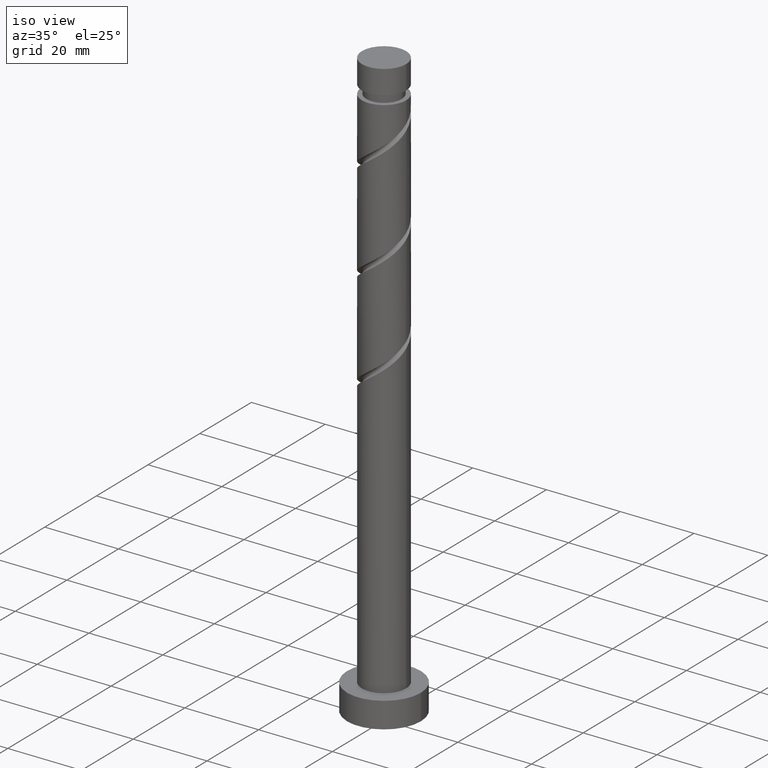
[diagram: clean part render]
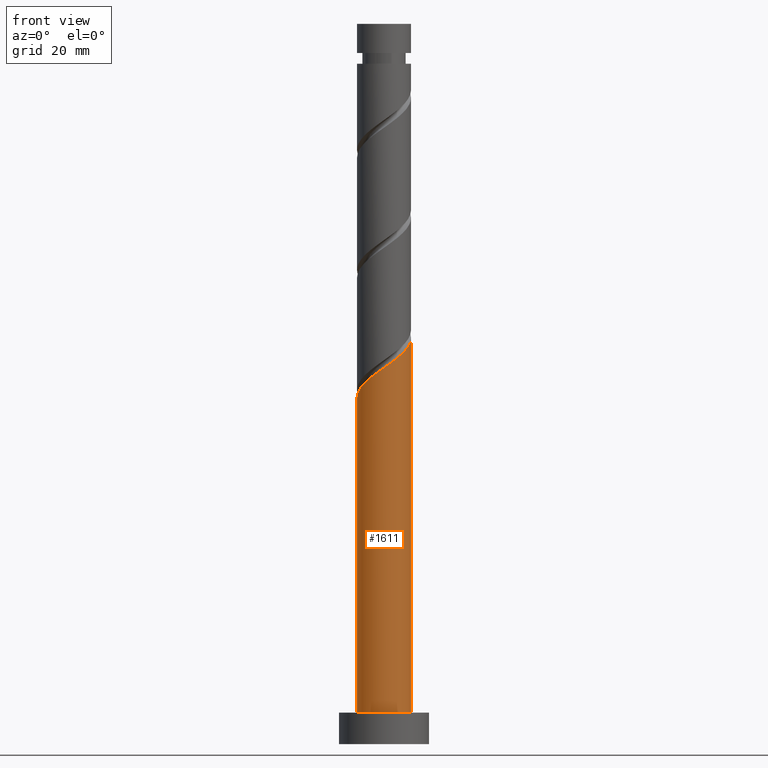
[diagram: tour spotlight — one face highlighted and labeled with its STEP entity id]
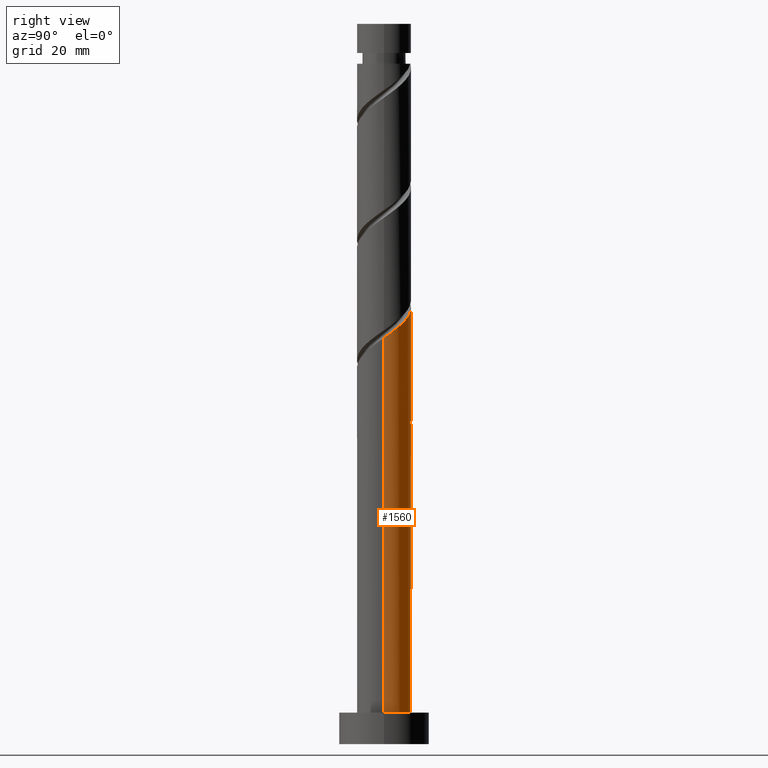
[diagram: tour spotlight — one face highlighted and labeled with its STEP entity id]
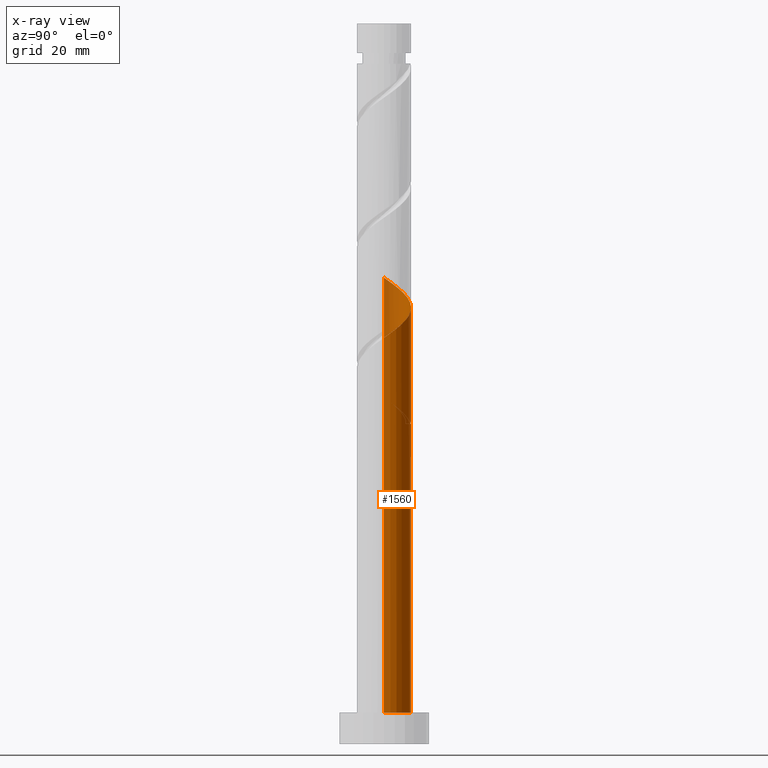
[diagram: x-ray of the same camera — body ghosted, this tour face saturated]
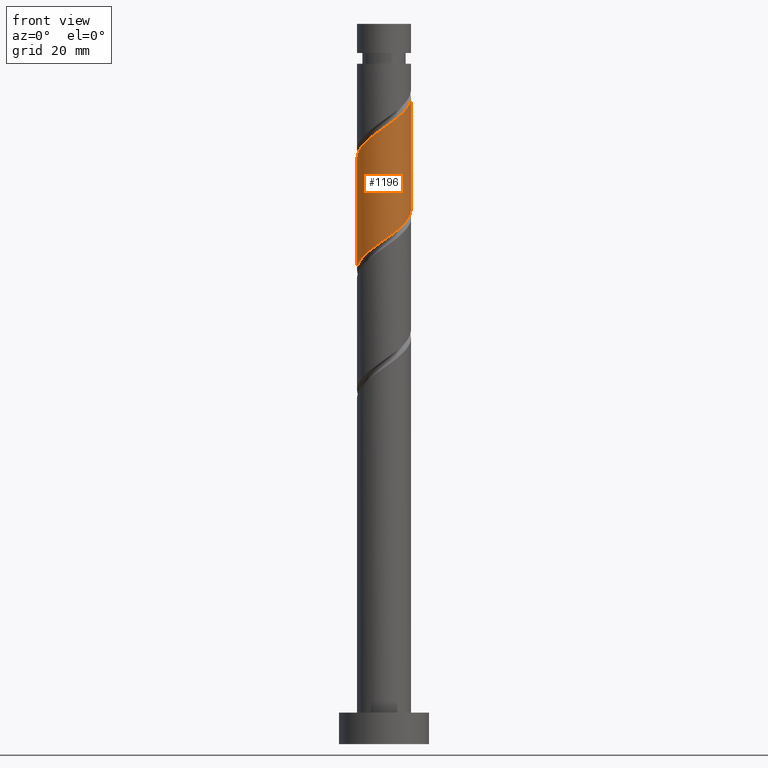
[diagram: tour spotlight — one face highlighted and labeled with its STEP entity id]
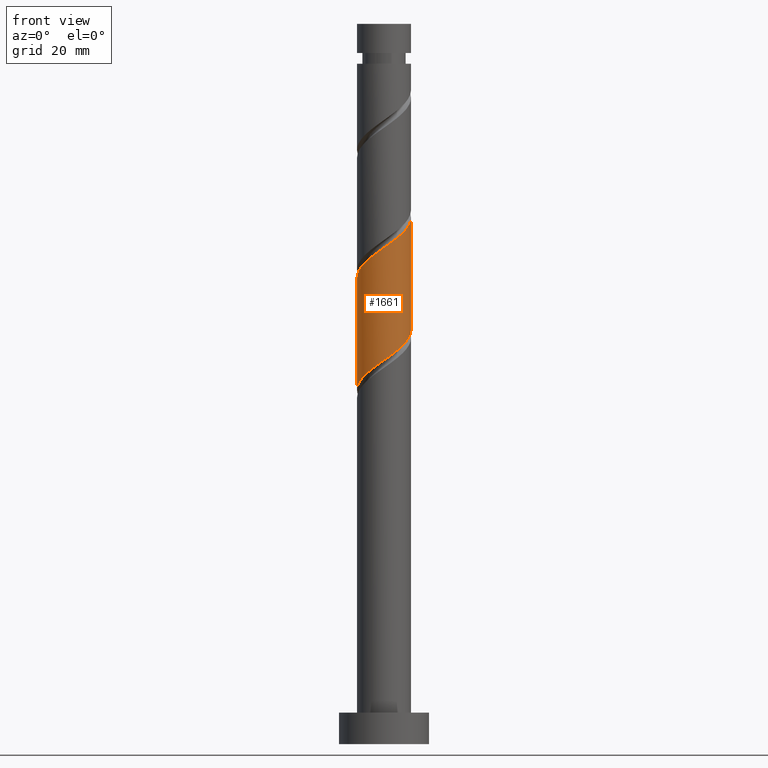
[diagram: tour spotlight — one face highlighted and labeled with its STEP entity id]
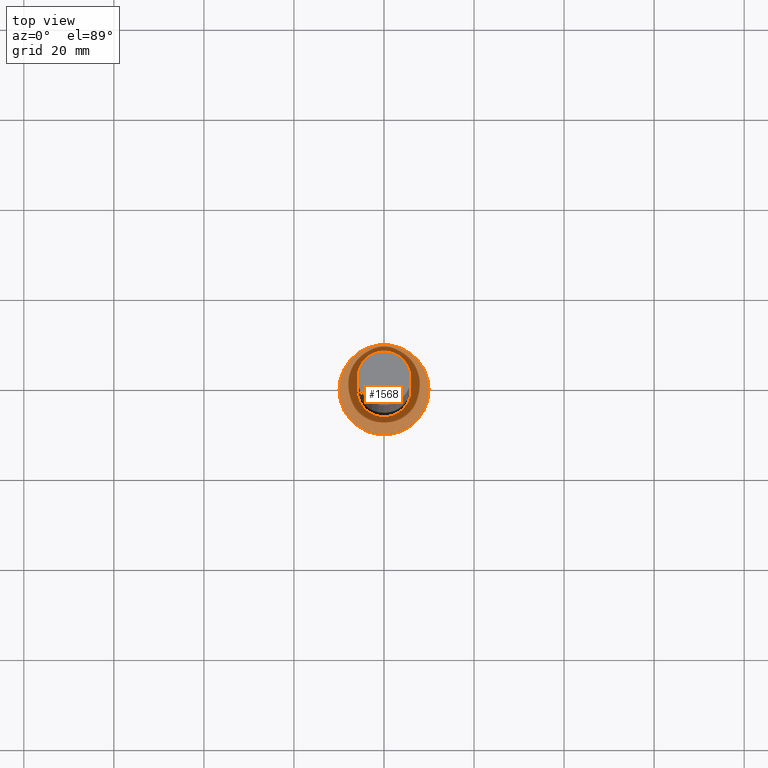
[diagram: tour spotlight — one face highlighted and labeled with its STEP entity id]
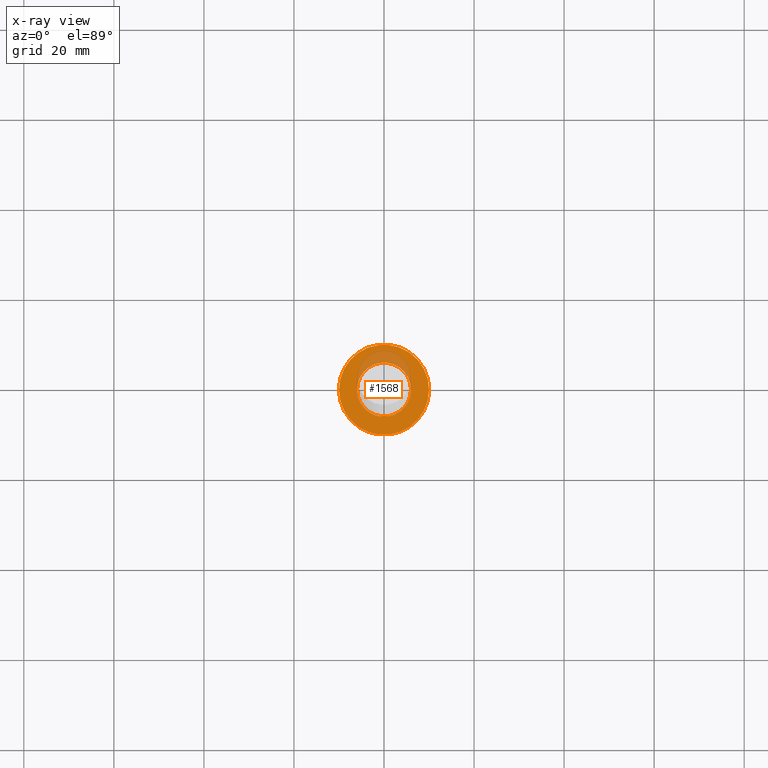
[diagram: x-ray of the same camera — body ghosted, this tour face saturated]
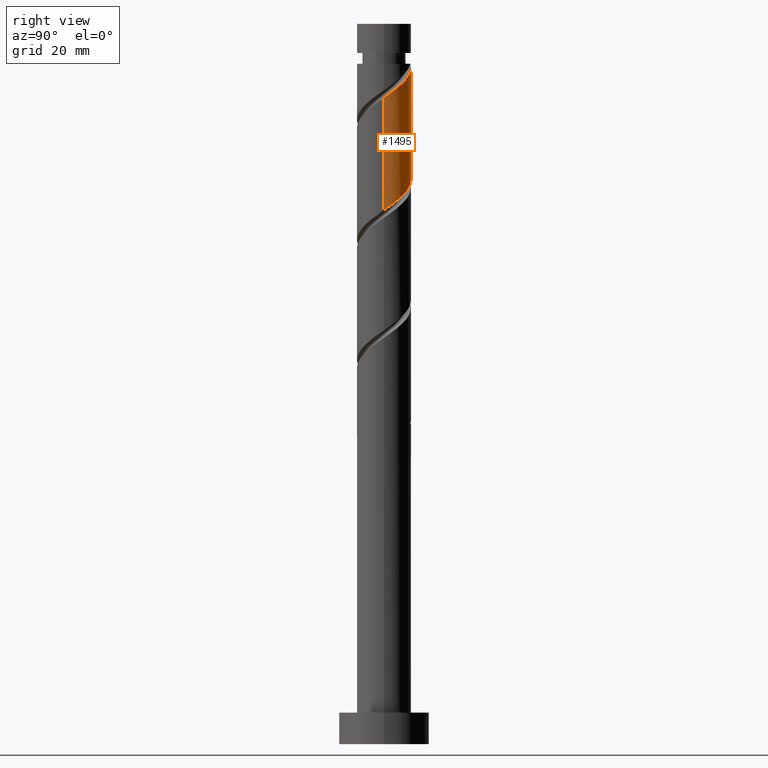
[diagram: tour spotlight — one face highlighted and labeled with its STEP entity id]
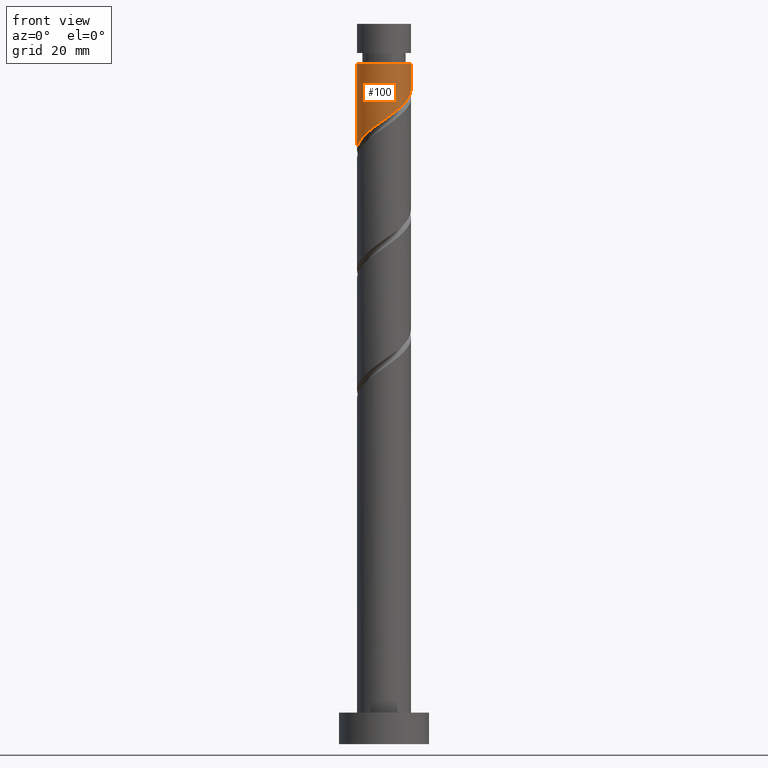
[diagram: tour spotlight — one face highlighted and labeled with its STEP entity id]
A machine part: a face-by-face anatomy tour. The part has 21 B-rep faces; the first image is the clean iso view, then the 7 largest visible faces are spotlighted one at a time (largest first), each with its STEP entity span.

Face 1 — front view, entity #1611. In plain terms, the highlighted cylindrical surface (edge-blend (fillet) strip) has radius 6 mm, axis along (-0, -0, -1).
Definition (entity closure, byte-faithful):
#3 = CYLINDRICAL_SURFACE ( 'NONE', #758, 6.000000000000000888 ) ;
#16 = DIRECTION ( 'NONE',  ( -0.000000000000000000, -0.000000000000000000, -1.000000000000000000 ) ) ;
#68 = ORIENTED_EDGE ( 'NONE', *, *, #1215, .T. ) ;
#99 = CARTESIAN_POINT ( 'NONE',  ( 5.649592463916823348, -2.196885093336046424, 88.69768516461985541 ) ) ;
#108 = CARTESIAN_POINT ( 'NONE',  ( 4.801810218481219472, -3.699569940865726547, 87.48556395249867990 ) ) ;
#162 = VERTEX_POINT ( 'NONE', #1579 ) ;
#178 = VERTEX_POINT ( 'NONE', #1011 ) ;
#247 = CARTESIAN_POINT ( 'NONE',  ( -6.000000000000000888, 0.000000000000000000, 7.000000000000000000 ) ) ;
#248 = CARTESIAN_POINT ( 'NONE',  ( 6.000000000000006217, 2.931536857885300648E-15, 90.27247310956141746 ) ) ;
#254 =( BOUNDED_CURVE ( )  B_SPLINE_CURVE ( 2, ( #256, #374, #1527, #772, #1533, #882, #502, #1265, #1031, #1259, #1292, #642, #634, #906, #1663, #269, #381, #1636, #482, #108, #1155, #99, #1519, #753, #248 ),
 .UNSPECIFIED., .F., .T. ) 
 B_SPLINE_CURVE_WITH_KNOTS ( ( 3, 2, 2, 2, 2, 2, 2, 2, 2, 2, 2, 2, 3 ),
 ( 0.05452521624175125925, 0.05681818181818176772, 0.06818181818181823228, 0.07954545454545458583, 0.09090909090909093937, 0.1022727272727272929, 0.1136363636363636465, 0.1250000000000000000, 0.1363636363636363535, 0.1477272727272727071, 0.1590909090909090606, 0.1704545454545454142, 0.1795252162417513286 ),
 .UNSPECIFIED. ) 
 CURVE ( )  GEOMETRIC_REPRESENTATION_ITEM ( )  RATIONAL_B_SPLINE_CURVE ( ( 0.9061101570135592365, 0.9072237824201413448, 0.9090909090909189416, 0.8998376744372211800, 0.9090909090909189416, 0.8998376744372211800, 0.9090909090909189416, 0.8998376744372211800, 0.9090909090909189416, 0.8998376744372211800, 0.9090909090909189416, 0.8998376744372211800, 0.9090909090909189416, 0.8998376744372211800, 0.9090909090909189416, 0.8998376744372211800, 0.9090909090909189416, 0.8998376744372211800, 0.9090909090909189416, 0.8998376744372211800, 0.9090909090909189416, 0.8998376744372211800, 0.9090909090909189416, 0.9017048011079986658, 0.9061101570135593475 ) ) 
 REPRESENTATION_ITEM ( '' )  );
#256 = CARTESIAN_POINT ( 'NONE',  ( -6.000000000000007105, -3.290500554769215214E-15, 76.93913977622807465 ) ) ;
#267 = EDGE_CURVE ( 'NONE', #479, #178, #254, .T. ) ;
#269 = CARTESIAN_POINT ( 'NONE',  ( 2.039401293218388034, -5.708330884495666169, 85.06132152825625781 ) ) ;
#296 = CARTESIAN_POINT ( 'NONE',  ( 6.000000000000000888, 7.347880794884120722E-16, 160.0000000000000000 ) ) ;
#374 = CARTESIAN_POINT ( 'NONE',  ( -6.000000000000007105, -0.1726531591429306678, 77.06123778094628562 ) ) ;
#381 = CARTESIAN_POINT ( 'NONE',  ( 2.802207579913806423, -5.305434259235873640, 85.66738213431685267 ) ) ;
#396 = DIRECTION ( 'NONE',  ( -0.000000000000000000, -0.000000000000000000, -1.000000000000000000 ) ) ;
#415 = EDGE_CURVE ( 'NONE', #479, #936, #1198, .T. ) ;
#479 = VERTEX_POINT ( 'NONE', #1436 ) ;
#482 = CARTESIAN_POINT ( 'NONE',  ( 4.183412042545223919, -4.301053787420904051, 86.87950334643805661 ) ) ;
#483 = ORIENTED_EDGE ( 'NONE', *, *, #267, .F. ) ;
#502 = CARTESIAN_POINT ( 'NONE',  ( -4.852636869737744441, -3.528727165772663543, 79.60677607371077613 ) ) ;
#541 = CIRCLE ( 'NONE', #1253, 6.000000000000000888 ) ;
#634 = CARTESIAN_POINT ( 'NONE',  ( -0.5109672885414098253, -5.978203110470631465, 83.24313971007443058 ) ) ;
#640 = EDGE_CURVE ( 'NONE', #178, #162, #1452, .T. ) ;
#642 = CARTESIAN_POINT ( 'NONE',  ( -1.370503132920319889, -5.904737105436913325, 82.63707910401382151 ) ) ;
#667 = CARTESIAN_POINT ( 'NONE',  ( -6.000000000000000888, 0.000000000000000000, 160.0000000000000000 ) ) ;
#668 = ORIENTED_EDGE ( 'NONE', *, *, #415, .T. ) ;
#714 = ORIENTED_EDGE ( 'NONE', *, *, #640, .F. ) ;
#753 = CARTESIAN_POINT ( 'NONE',  ( 6.000000000000008882, -0.6871735643107371727, 89.78651315659010379 ) ) ;
#758 = AXIS2_PLACEMENT_3D ( 'NONE', #1035, #396, #1544 ) ;
#772 = CARTESIAN_POINT ( 'NONE',  ( -5.940465372043662207, -1.206262941989865389, 77.78859425552896312 ) ) ;
#882 = CARTESIAN_POINT ( 'NONE',  ( -5.359991241606255841, -2.831023315264663331, 79.00071546765019548 ) ) ;
#906 = CARTESIAN_POINT ( 'NONE',  ( 0.3485685558375004045, -6.051669115504352270, 83.84920031613502545 ) ) ;
#936 = VERTEX_POINT ( 'NONE', #247 ) ;
#1011 = CARTESIAN_POINT ( 'NONE',  ( 6.000000000000007105, 2.931536857885300648E-15, 90.27247310956141746 ) ) ;
#1031 = CARTESIAN_POINT ( 'NONE',  ( -3.661913653207068631, -4.752934714095676583, 80.81889728583199428 ) ) ;
#1035 = CARTESIAN_POINT ( 'NONE',  ( 0.000000000000000000, 0.000000000000000000, 160.0000000000000000 ) ) ;
#1080 = DIRECTION ( 'NONE',  ( -0.000000000000000000, -0.000000000000000000, -1.000000000000000000 ) ) ;
#1085 = DIRECTION ( 'NONE',  ( 1.000000000000000000, 0.000000000000000000, 0.000000000000000000 ) ) ;
#1155 = CARTESIAN_POINT ( 'NONE',  ( 5.225701341199021854, -2.948227517100886708, 88.09162455855927476 ) ) ;
#1158 = FACE_OUTER_BOUND ( 'NONE', #1656, .T. ) ;
#1197 = CARTESIAN_POINT ( 'NONE',  ( 0.000000000000000000, 0.000000000000000000, 7.000000000000000000 ) ) ;
#1198 = LINE ( 'NONE', #667, #1618 ) ;
#1204 = DIRECTION ( 'NONE',  ( 0.000000000000000000, 0.000000000000000000, 1.000000000000000000 ) ) ;
#1215 = EDGE_CURVE ( 'NONE', #936, #162, #541, .T. ) ;
#1253 = AXIS2_PLACEMENT_3D ( 'NONE', #1197, #1204, #1085 ) ;
#1259 = CARTESIAN_POINT ( 'NONE',  ( -2.978544808544907774, -5.279438411910691187, 81.42495789189261757 ) ) ;
#1265 = CARTESIAN_POINT ( 'NONE',  ( -4.345282497869232152, -4.226431016280665531, 80.21283667977137100 ) ) ;
#1292 = CARTESIAN_POINT ( 'NONE',  ( -2.174523970732614941, -5.592087758673799591, 82.03101849795321243 ) ) ;
#1436 = CARTESIAN_POINT ( 'NONE',  ( -6.000000000000007105, -3.290500554769214820E-15, 76.93913977622807465 ) ) ;
#1452 = LINE ( 'NONE', #296, #1542 ) ;
#1519 = CARTESIAN_POINT ( 'NONE',  ( 5.844635395631410546, -1.356553387129527222, 89.30374577068047870 ) ) ;
#1527 = CARTESIAN_POINT ( 'NONE',  ( -5.990071849694825978, -0.3450206305334292956, 77.18253364946835404 ) ) ;
#1533 = CARTESIAN_POINT ( 'NONE',  ( -5.650228306824956803, -2.018643128627264360, 78.39465486158957219 ) ) ;
#1542 = VECTOR ( 'NONE', #1080, 1000.000000000000000 ) ;
#1544 = DIRECTION ( 'NONE',  ( -1.000000000000000000, 0.000000000000000000, 0.000000000000000000 ) ) ;
#1579 = CARTESIAN_POINT ( 'NONE',  ( 6.000000000000000888, 7.347880794884120722E-16, 7.000000000000000000 ) ) ;
#1611 = ADVANCED_FACE ( 'NONE', ( #1158 ), #3, .T. ) ;
#1618 = VECTOR ( 'NONE', #16, 1000.000000000000000 ) ;
#1636 = CARTESIAN_POINT ( 'NONE',  ( 3.565013866609227922, -4.902537633976083775, 86.27344274037747596 ) ) ;
#1656 = EDGE_LOOP ( 'NONE', ( #714, #483, #668, #68 ) ) ;
#1663 = CARTESIAN_POINT ( 'NONE',  ( 1.193984924527944358, -5.880000000000009663, 84.45526092219563452 ) ) ;

Face 2 — right view, entity #1560. An x-ray twin of the same camera follows (body ghosted, this face saturated) — the face is partly hidden behind the body. In plain terms, the highlighted cylindrical surface (edge-blend (fillet) strip) has radius 6 mm, axis along (-0, -0, -1).
Definition (entity closure, byte-faithful):
#16 = DIRECTION ( 'NONE',  ( -0.000000000000000000, -0.000000000000000000, -1.000000000000000000 ) ) ;
#27 = CARTESIAN_POINT ( 'NONE',  ( -3.565013866609227478, 4.902537633976083775, 72.94010940704413315 ) ) ;
#30 = CARTESIAN_POINT ( 'NONE',  ( 1.193984924527945690, 5.879999999999999893, 71.12192758886230592 ) ) ;
#46 = VERTEX_POINT ( 'NONE', #1014 ) ;
#57 = CARTESIAN_POINT ( 'NONE',  ( -6.000000000000000888, 0.000000000000000000, 160.0000000000000000 ) ) ;
#66 = CARTESIAN_POINT ( 'NONE',  ( 2.174523970732613165, 5.592087758673799591, 95.36435183128654103 ) ) ;
#107 = CARTESIAN_POINT ( 'NONE',  ( -1.193984924527943470, 5.880000000000009663, 71.12192758886230592 ) ) ;
#145 = CARTESIAN_POINT ( 'NONE',  ( -4.183412042545223919, 4.301053787420904051, 73.54617001310471380 ) ) ;
#153 = CARTESIAN_POINT ( 'NONE',  ( -4.801810218481219472, 3.699569940865725215, 74.15223061916535130 ) ) ;
#155 = CARTESIAN_POINT ( 'NONE',  ( -4.345282497869225047, 4.226431016280660202, 75.36435183128655524 ) ) ;
#162 = VERTEX_POINT ( 'NONE', #1579 ) ;
#167 = ORIENTED_EDGE ( 'NONE', *, *, #640, .T. ) ;
#170 = AXIS2_PLACEMENT_3D ( 'NONE', #380, #1264, #1133 ) ;
#178 = VERTEX_POINT ( 'NONE', #1011 ) ;
#185 = CARTESIAN_POINT ( 'NONE',  ( -5.650228306824950586, 2.018643128627263028, 77.18253364946841089 ) ) ;
#193 = CARTESIAN_POINT ( 'NONE',  ( -4.183412042545223919, 4.301053787420904051, 100.2128366797713852 ) ) ;
#225 = CARTESIAN_POINT ( 'NONE',  ( -5.844635395631409658, 1.356553387129527444, 102.6370791040137789 ) ) ;
#226 = VECTOR ( 'NONE', #660, 1000.000000000000000 ) ;
#247 = CARTESIAN_POINT ( 'NONE',  ( -6.000000000000000888, 0.000000000000000000, 7.000000000000000000 ) ) ;
#252 = CARTESIAN_POINT ( 'NONE',  ( 0.5109672885414104915, 5.978203110470631465, 96.57647304340774497 ) ) ;
#274 = CARTESIAN_POINT ( 'NONE',  ( -6.000000000000007994, 0.6871735643107425018, 76.45317982325676098 ) ) ;
#289 = CYLINDRICAL_SURFACE ( 'NONE', #1331, 6.000000000000000888 ) ;
#293 = CARTESIAN_POINT ( 'NONE',  ( -5.359991241606247847, 2.831023315264661999, 76.57647304340777339 ) ) ;
#296 = CARTESIAN_POINT ( 'NONE',  ( 6.000000000000000888, 7.347880794884120722E-16, 160.0000000000000000 ) ) ;
#312 = ORIENTED_EDGE ( 'NONE', *, *, #1629, .F. ) ;
#316 =( BOUNDED_CURVE ( )  B_SPLINE_CURVE ( 2, ( #787, #1434, #430, #927, #185, #293, #944, #155, #1457, #1178, #529, #1211, #1188, #666, #30 ),
 .UNSPECIFIED., .F., .T. ) 
 B_SPLINE_CURVE_WITH_KNOTS ( ( 3, 2, 2, 2, 2, 2, 2, 3 ),
 ( 0.9295252162417513286, 0.9318181818181817677, 0.9431818181818182323, 0.9545454545454545858, 0.9659090909090909394, 0.9772727272727272929, 0.9886363636363636465, 1.000000000000000000 ),
 .UNSPECIFIED. ) 
 CURVE ( )  GEOMETRIC_REPRESENTATION_ITEM ( )  RATIONAL_B_SPLINE_CURVE ( ( 0.9061101570135532413, 0.9072237824201354606, 0.9090909090909129464, 0.8998376744372154068, 0.9090909090909129464, 0.8998376744372154068, 0.9090909090909129464, 0.8998376744372154068, 0.9090909090909129464, 0.8998376744372154068, 0.9090909090909129464, 0.8998376744372154068, 0.9090909090909129464, 0.8998376744372154068, 0.9090909090909129464 ) ) 
 REPRESENTATION_ITEM ( '' )  );
#373 = CARTESIAN_POINT ( 'NONE',  ( 1.193984924527945690, 5.879999999999999893, 71.12192758886230592 ) ) ;
#379 =( BOUNDED_CURVE ( )  B_SPLINE_CURVE ( 2, ( #557, #794, #1575, #934, #1595, #757, #1474, #828, #1348, #1604, #66, #1530, #252, #733, #885, #1393, #1094, #1221, #193, #612, #602, #1122, #225, #1131, #629 ),
 .UNSPECIFIED., .F., .T. ) 
 B_SPLINE_CURVE_WITH_KNOTS ( ( 3, 2, 2, 2, 2, 2, 2, 2, 2, 2, 2, 2, 3 ),
 ( 0.1795252162417513286, 0.1818181818181817677, 0.1931818181818182323, 0.2045454545454545858, 0.2159090909090909394, 0.2272727272727272929, 0.2386363636363636465, 0.2500000000000000000, 0.2613636363636363535, 0.2727272727272727071, 0.2840909090909090606, 0.2954545454545454142, 0.3045252162417513286 ),
 .UNSPECIFIED. ) 
 CURVE ( )  GEOMETRIC_REPRESENTATION_ITEM ( )  RATIONAL_B_SPLINE_CURVE ( ( 0.9061101570135593475, 0.9072237824201414558, 0.9090909090909189416, 0.8998376744372211800, 0.9090909090909189416, 0.8998376744372211800, 0.9090909090909189416, 0.8998376744372211800, 0.9090909090909189416, 0.8998376744372211800, 0.9090909090909189416, 0.8998376744372211800, 0.9090909090909189416, 0.8998376744372211800, 0.9090909090909189416, 0.8998376744372211800, 0.9090909090909189416, 0.8998376744372211800, 0.9090909090909189416, 0.8998376744372211800, 0.9090909090909189416, 0.8998376744372211800, 0.9090909090909189416, 0.9017048011079986658, 0.9061101570135593475 ) ) 
 REPRESENTATION_ITEM ( '' )  );
#380 = CARTESIAN_POINT ( 'NONE',  ( 0.000000000000000000, 0.000000000000000000, 71.12192758886230592 ) ) ;
#390 = CARTESIAN_POINT ( 'NONE',  ( -1.193984924527943692, 5.880000000000009663, 71.12192758886230592 ) ) ;
#410 = CARTESIAN_POINT ( 'NONE',  ( 0.000000000000000000, 0.000000000000000000, 160.0000000000000000 ) ) ;
#415 = EDGE_CURVE ( 'NONE', #479, #936, #1198, .T. ) ;
#430 = CARTESIAN_POINT ( 'NONE',  ( -5.990071849694821537, 0.3450206305334307388, 78.39465486158961482 ) ) ;
#479 = VERTEX_POINT ( 'NONE', #1436 ) ;
#529 = CARTESIAN_POINT ( 'NONE',  ( -2.174523970732609612, 5.592087758673795150, 73.54617001310472801 ) ) ;
#546 =( BOUNDED_CURVE ( )  B_SPLINE_CURVE ( 2, ( #390, #909, #1320, #27, #145, #153, #775, #1173, #1295, #274, #671 ),
 .UNSPECIFIED., .F., .T. ) 
 B_SPLINE_CURVE_WITH_KNOTS ( ( 3, 2, 2, 2, 2, 3 ),
 ( 0.000000000000000000, 0.01136363636363635354, 0.02272727272727270709, 0.03409090909090906063, 0.04545454545454541417, 0.05452521624175126619 ),
 .UNSPECIFIED. ) 
 CURVE ( )  GEOMETRIC_REPRESENTATION_ITEM ( )  RATIONAL_B_SPLINE_CURVE ( ( 0.9090909090909189416, 0.8998376744372211800, 0.9090909090909189416, 0.8998376744372211800, 0.9090909090909189416, 0.8998376744372211800, 0.9090909090909189416, 0.8998376744372211800, 0.9090909090909189416, 0.9017048011079987768, 0.9061101570135592365 ) ) 
 REPRESENTATION_ITEM ( '' )  );
#557 = CARTESIAN_POINT ( 'NONE',  ( 6.000000000000006217, 2.931536857885300648E-15, 90.27247310956141746 ) ) ;
#580 = VERTEX_POINT ( 'NONE', #1541 ) ;
#602 = CARTESIAN_POINT ( 'NONE',  ( -5.225701341199021854, 2.948227517100885819, 101.4249578918926318 ) ) ;
#612 = CARTESIAN_POINT ( 'NONE',  ( -4.801810218481219472, 3.699569940865725215, 100.8188972858320085 ) ) ;
#623 = EDGE_LOOP ( 'NONE', ( #655, #167, #780, #686, #312, #860, #945, #1266 ) ) ;
#629 = CARTESIAN_POINT ( 'NONE',  ( -6.000000000000006217, -3.290500554769214425E-15, 103.6058064428947318 ) ) ;
#638 = FACE_OUTER_BOUND ( 'NONE', #623, .T. ) ;
#640 = EDGE_CURVE ( 'NONE', #178, #162, #1452, .T. ) ;
#649 = AXIS2_PLACEMENT_3D ( 'NONE', #1225, #737, #962 ) ;
#654 = DIRECTION ( 'NONE',  ( -1.000000000000000000, 0.000000000000000000, 0.000000000000000000 ) ) ;
#655 = ORIENTED_EDGE ( 'NONE', *, *, #1249, .F. ) ;
#660 = DIRECTION ( 'NONE',  ( -0.000000000000000000, -0.000000000000000000, -1.000000000000000000 ) ) ;
#662 = EDGE_CURVE ( 'NONE', #46, #580, #822, .T. ) ;
#666 = CARTESIAN_POINT ( 'NONE',  ( 0.3485685558375008486, 6.051669115504346053, 71.72798819492290079 ) ) ;
#667 = CARTESIAN_POINT ( 'NONE',  ( -6.000000000000000888, 0.000000000000000000, 160.0000000000000000 ) ) ;
#671 = CARTESIAN_POINT ( 'NONE',  ( -6.000000000000007105, -3.290500554769215214E-15, 76.93913977622807465 ) ) ;
#686 = ORIENTED_EDGE ( 'NONE', *, *, #415, .F. ) ;
#733 = CARTESIAN_POINT ( 'NONE',  ( -0.3485685558374996829, 6.051669115504352270, 97.18253364946836825 ) ) ;
#737 = DIRECTION ( 'NONE',  ( 0.000000000000000000, 0.000000000000000000, 1.000000000000000000 ) ) ;
#757 = CARTESIAN_POINT ( 'NONE',  ( 5.359991241606256729, 2.831023315264662443, 92.33404880098353829 ) ) ;
#775 = CARTESIAN_POINT ( 'NONE',  ( -5.225701341199021854, 2.948227517100885819, 74.75829122522594616 ) ) ;
#780 = ORIENTED_EDGE ( 'NONE', *, *, #789, .T. ) ;
#783 = DIRECTION ( 'NONE',  ( -0.000000000000000000, -0.000000000000000000, -1.000000000000000000 ) ) ;
#787 = CARTESIAN_POINT ( 'NONE',  ( -6.000000000000001776, 4.995578114967841451E-15, 78.63804873482988000 ) ) ;
#789 = EDGE_CURVE ( 'NONE', #162, #936, #1417, .T. ) ;
#794 = CARTESIAN_POINT ( 'NONE',  ( 6.000000000000007105, 0.1726531591429353585, 90.39457111427964264 ) ) ;
#822 = LINE ( 'NONE', #57, #226 ) ;
#828 = CARTESIAN_POINT ( 'NONE',  ( 4.345282497869233929, 4.226431016280661979, 93.54617001310472801 ) ) ;
#860 = ORIENTED_EDGE ( 'NONE', *, *, #959, .T. ) ;
#885 = CARTESIAN_POINT ( 'NONE',  ( -1.193984924527943692, 5.880000000000009663, 97.78859425552897733 ) ) ;
#909 = CARTESIAN_POINT ( 'NONE',  ( -2.039401293218389810, 5.708330884495663504, 71.72798819492290079 ) ) ;
#927 = CARTESIAN_POINT ( 'NONE',  ( -5.940465372043651548, 1.206262941989865167, 77.78859425552897733 ) ) ;
#934 = CARTESIAN_POINT ( 'NONE',  ( 5.940465372043662207, 1.206262941989864945, 91.12192758886227750 ) ) ;
#936 = VERTEX_POINT ( 'NONE', #247 ) ;
#944 = CARTESIAN_POINT ( 'NONE',  ( -4.852636869737737335, 3.528727165772661323, 75.97041243734716431 ) ) ;
#945 = ORIENTED_EDGE ( 'NONE', *, *, #1102, .F. ) ;
#959 = EDGE_CURVE ( 'NONE', #1027, #961, #1194, .T. ) ;
#961 = VERTEX_POINT ( 'NONE', #373 ) ;
#962 = DIRECTION ( 'NONE',  ( 1.000000000000000000, 0.000000000000000000, 0.000000000000000000 ) ) ;
#1011 = CARTESIAN_POINT ( 'NONE',  ( 6.000000000000007105, 2.931536857885300648E-15, 90.27247310956141746 ) ) ;
#1014 = CARTESIAN_POINT ( 'NONE',  ( -6.000000000000007105, -3.290500554769214820E-15, 103.6058064428947318 ) ) ;
#1027 = VERTEX_POINT ( 'NONE', #107 ) ;
#1080 = DIRECTION ( 'NONE',  ( -0.000000000000000000, -0.000000000000000000, -1.000000000000000000 ) ) ;
#1094 = CARTESIAN_POINT ( 'NONE',  ( -2.802207579913807756, 5.305434259235873640, 99.00071546765015285 ) ) ;
#1102 = EDGE_CURVE ( 'NONE', #580, #961, #316, .T. ) ;
#1122 = CARTESIAN_POINT ( 'NONE',  ( -5.649592463916822460, 2.196885093336047756, 102.0310184979531982 ) ) ;
#1131 = CARTESIAN_POINT ( 'NONE',  ( -6.000000000000008882, 0.6871735643107373948, 103.1198464899234608 ) ) ;
#1133 = DIRECTION ( 'NONE',  ( -1.000000000000000000, 0.000000000000000000, 0.000000000000000000 ) ) ;
#1173 = CARTESIAN_POINT ( 'NONE',  ( -5.649592463916822460, 2.196885093336047756, 75.36435183128655524 ) ) ;
#1178 = CARTESIAN_POINT ( 'NONE',  ( -2.978544808544902445, 5.279438411910683193, 74.15223061916536551 ) ) ;
#1188 = CARTESIAN_POINT ( 'NONE',  ( -0.5109672885414083821, 5.978203110470625248, 72.33404880098353829 ) ) ;
#1194 = CIRCLE ( 'NONE', #170, 6.000000000000000888 ) ;
#1198 = LINE ( 'NONE', #667, #1618 ) ;
#1211 = CARTESIAN_POINT ( 'NONE',  ( -1.370503132920317890, 5.904737105436904443, 72.94010940704410473 ) ) ;
#1221 = CARTESIAN_POINT ( 'NONE',  ( -3.565013866609227478, 4.902537633976083775, 99.60677607371076192 ) ) ;
#1225 = CARTESIAN_POINT ( 'NONE',  ( 0.000000000000000000, 0.000000000000000000, 7.000000000000000000 ) ) ;
#1249 = EDGE_CURVE ( 'NONE', #178, #46, #379, .T. ) ;
#1264 = DIRECTION ( 'NONE',  ( 0.000000000000000000, -0.000000000000000000, -1.000000000000000000 ) ) ;
#1266 = ORIENTED_EDGE ( 'NONE', *, *, #662, .F. ) ;
#1295 = CARTESIAN_POINT ( 'NONE',  ( -5.844635395631409658, 1.356553387129527444, 75.97041243734716431 ) ) ;
#1320 = CARTESIAN_POINT ( 'NONE',  ( -2.802207579913807756, 5.305434259235873640, 72.33404880098352407 ) ) ;
#1331 = AXIS2_PLACEMENT_3D ( 'NONE', #410, #783, #654 ) ;
#1348 = CARTESIAN_POINT ( 'NONE',  ( 3.661913653207068631, 4.752934714095678359, 94.15223061916530867 ) ) ;
#1393 = CARTESIAN_POINT ( 'NONE',  ( -2.039401293218389810, 5.708330884495663504, 98.39465486158955798 ) ) ;
#1417 = CIRCLE ( 'NONE', #649, 6.000000000000000888 ) ;
#1434 = CARTESIAN_POINT ( 'NONE',  ( -6.000000000000002665, 0.1726531591429374124, 78.51595073011166903 ) ) ;
#1436 = CARTESIAN_POINT ( 'NONE',  ( -6.000000000000007105, -3.290500554769214820E-15, 76.93913977622807465 ) ) ;
#1452 = LINE ( 'NONE', #296, #1542 ) ;
#1457 = CARTESIAN_POINT ( 'NONE',  ( -3.661913653207064190, 4.752934714095671254, 74.75829122522594616 ) ) ;
#1474 = CARTESIAN_POINT ( 'NONE',  ( 4.852636869737744441, 3.528727165772661767, 92.94010940704411894 ) ) ;
#1530 = CARTESIAN_POINT ( 'NONE',  ( 1.370503132920320777, 5.904737105436912437, 95.97041243734717852 ) ) ;
#1541 = CARTESIAN_POINT ( 'NONE',  ( -6.000000000000001776, 4.995578114967841451E-15, 78.63804873482988000 ) ) ;
#1542 = VECTOR ( 'NONE', #1080, 1000.000000000000000 ) ;
#1560 = ADVANCED_FACE ( 'NONE', ( #638 ), #289, .T. ) ;
#1575 = CARTESIAN_POINT ( 'NONE',  ( 5.990071849694825978, 0.3450206305334286849, 90.51586698280168264 ) ) ;
#1579 = CARTESIAN_POINT ( 'NONE',  ( 6.000000000000000888, 7.347880794884120722E-16, 7.000000000000000000 ) ) ;
#1595 = CARTESIAN_POINT ( 'NONE',  ( 5.650228306824956803, 2.018643128627263472, 91.72798819492290079 ) ) ;
#1604 = CARTESIAN_POINT ( 'NONE',  ( 2.978544808544905553, 5.279438411910692075, 94.75829122522594616 ) ) ;
#1618 = VECTOR ( 'NONE', #16, 1000.000000000000000 ) ;
#1629 = EDGE_CURVE ( 'NONE', #1027, #479, #546, .T. ) ;

Face 3 — front view, entity #1196. In plain terms, the highlighted cylindrical surface (edge-blend (fillet) strip) has radius 6 mm, axis along (-0, -0, -1).
Definition (entity closure, byte-faithful):
#4 = CARTESIAN_POINT ( 'NONE',  ( -6.000000000000007105, -3.290500554769215214E-15, 130.2724731095614175 ) ) ;
#12 = CARTESIAN_POINT ( 'NONE',  ( -6.000000000000001776, 4.995578114967841451E-15, 105.3047154014965372 ) ) ;
#13 = ORIENTED_EDGE ( 'NONE', *, *, #1405, .F. ) ;
#19 = EDGE_CURVE ( 'NONE', #616, #1070, #712, .T. ) ;
#23 = CARTESIAN_POINT ( 'NONE',  ( -2.039401293218387590, -5.708330884495655511, 110.5158669828016968 ) ) ;
#28 = CARTESIAN_POINT ( 'NONE',  ( 0.3485685558375004045, -6.051669115504352270, 137.1825336494683256 ) ) ;
#39 = CARTESIAN_POINT ( 'NONE',  ( 2.174523970732609612, -5.592087758673795150, 113.5461700131047564 ) ) ;
#47 = CARTESIAN_POINT ( 'NONE',  ( 4.345282497869226823, -4.226431016280659314, 115.3643518312865552 ) ) ;
#55 = CYLINDRICAL_SURFACE ( 'NONE', #1280, 6.000000000000000888 ) ;
#112 = CARTESIAN_POINT ( 'NONE',  ( 6.000000000000007105, 2.931536857885300648E-15, 143.6058064428947603 ) ) ;
#146 = CARTESIAN_POINT ( 'NONE',  ( -5.990071849694825978, -0.3450206305334292956, 130.5158669828016684 ) ) ;
#165 = CARTESIAN_POINT ( 'NONE',  ( 0.000000000000000000, 0.000000000000000000, 160.0000000000000000 ) ) ;
#198 = EDGE_CURVE ( 'NONE', #616, #1633, #240, .T. ) ;
#232 = VERTEX_POINT ( 'NONE', #515 ) ;
#240 = LINE ( 'NONE', #1655, #1515 ) ;
#271 =( BOUNDED_CURVE ( )  B_SPLINE_CURVE ( 2, ( #413, #1569, #1315, #302, #1465, #920, #285, #47, #1078, #1441, #39, #1561, #1054, #1584, #538, #23, #549, #658, #1308, #1450, #692, #912, #421, #810, #1334 ),
 .UNSPECIFIED., .F., .T. ) 
 B_SPLINE_CURVE_WITH_KNOTS ( ( 3, 2, 2, 2, 2, 2, 2, 2, 2, 2, 2, 2, 3 ),
 ( 0.5545252162417512176, 0.5568181818181817677, 0.5681818181818182323, 0.5795454545454545858, 0.5909090909090909394, 0.6022727272727272929, 0.6136363636363636465, 0.6250000000000000000, 0.6363636363636363535, 0.6477272727272727071, 0.6590909090909090606, 0.6704545454545454142, 0.6795252162417513286 ),
 .UNSPECIFIED. ) 
 CURVE ( )  GEOMETRIC_REPRESENTATION_ITEM ( )  RATIONAL_B_SPLINE_CURVE ( ( 0.9061101570135533523, 0.9072237824201354606, 0.9090909090909129464, 0.8998376744372154068, 0.9090909090909129464, 0.8998376744372154068, 0.9090909090909129464, 0.8998376744372154068, 0.9090909090909129464, 0.8998376744372154068, 0.9090909090909129464, 0.8998376744372154068, 0.9090909090909129464, 0.8998376744372154068, 0.9090909090909129464, 0.8998376744372154068, 0.9090909090909129464, 0.8998376744372154068, 0.9090909090909129464, 0.8998376744372154068, 0.9090909090909129464, 0.8998376744372154068, 0.9090909090909129464, 0.9017048011079928926, 0.9061101570135532413 ) ) 
 REPRESENTATION_ITEM ( '' )  );
#275 = CARTESIAN_POINT ( 'NONE',  ( 2.039401293218388034, -5.708330884495666169, 138.3946548615895438 ) ) ;
#285 = CARTESIAN_POINT ( 'NONE',  ( 4.852636869737738223, -3.528727165772660879, 115.9704124373471785 ) ) ;
#291 = CARTESIAN_POINT ( 'NONE',  ( 1.193984924527944358, -5.880000000000009663, 137.7885942555289205 ) ) ;
#302 = CARTESIAN_POINT ( 'NONE',  ( 5.940465372043651548, -1.206262941989866277, 117.7885942555289915 ) ) ;
#413 = CARTESIAN_POINT ( 'NONE',  ( 6.000000000000001776, -6.192123771247564035E-15, 118.6380487348298942 ) ) ;
#421 = CARTESIAN_POINT ( 'NONE',  ( -5.844635395631401664, -1.356553387129523891, 106.2734427403775186 ) ) ;
#429 = ORIENTED_EDGE ( 'NONE', *, *, #19, .F. ) ;
#438 = ORIENTED_EDGE ( 'NONE', *, *, #1090, .F. ) ;
#515 = CARTESIAN_POINT ( 'NONE',  ( 6.000000000000001776, -6.192123771247564035E-15, 118.6380487348298942 ) ) ;
#520 = LINE ( 'NONE', #1419, #1645 ) ;
#521 = CARTESIAN_POINT ( 'NONE',  ( -1.370503132920319889, -5.904737105436913325, 135.9704124373471075 ) ) ;
#538 = CARTESIAN_POINT ( 'NONE',  ( -1.193984924527945246, -5.880000000000000782, 111.1219275888623343 ) ) ;
#549 = CARTESIAN_POINT ( 'NONE',  ( -2.802207579913806423, -5.305434259235867422, 109.9098063767411304 ) ) ;
#563 = DIRECTION ( 'NONE',  ( -0.000000000000000000, -0.000000000000000000, -1.000000000000000000 ) ) ;
#610 = CARTESIAN_POINT ( 'NONE',  ( 5.844635395631410546, -1.356553387129527222, 142.6370791040138499 ) ) ;
#616 = VERTEX_POINT ( 'NONE', #1056 ) ;
#656 = CARTESIAN_POINT ( 'NONE',  ( -5.359991241606255841, -2.831023315264663331, 132.3340488009835099 ) ) ;
#658 = CARTESIAN_POINT ( 'NONE',  ( -3.565013866609223037, -4.902537633976076670, 109.3037457706805071 ) ) ;
#664 = CARTESIAN_POINT ( 'NONE',  ( -5.940465372043662207, -1.206262941989865389, 131.1219275888623486 ) ) ;
#675 = DIRECTION ( 'NONE',  ( -1.000000000000000000, 0.000000000000000000, 0.000000000000000000 ) ) ;
#692 = CARTESIAN_POINT ( 'NONE',  ( -5.225701341199014749, -2.948227517100881823, 107.4855639524986657 ) ) ;
#712 =( BOUNDED_CURVE ( )  B_SPLINE_CURVE ( 2, ( #4, #1545, #146, #664, #1546, #656, #1059, #1184, #1297, #769, #1167, #521, #1045, #28, #291, #275, #1283, #1028, #1140, #992, #1650, #1391, #610, #1129, #112 ),
 .UNSPECIFIED., .F., .T. ) 
 B_SPLINE_CURVE_WITH_KNOTS ( ( 3, 2, 2, 2, 2, 2, 2, 2, 2, 2, 2, 2, 3 ),
 ( 0.5545252162417513286, 0.5568181818181818787, 0.5681818181818181213, 0.5795454545454545858, 0.5909090909090908283, 0.6022727272727272929, 0.6136363636363636465, 0.6250000000000000000, 0.6363636363636363535, 0.6477272727272727071, 0.6590909090909091717, 0.6704545454545454142, 0.6795252162417514397 ),
 .UNSPECIFIED. ) 
 CURVE ( )  GEOMETRIC_REPRESENTATION_ITEM ( )  RATIONAL_B_SPLINE_CURVE ( ( 0.9061101570135592365, 0.9072237824201414558, 0.9090909090909189416, 0.8998376744372211800, 0.9090909090909189416, 0.8998376744372211800, 0.9090909090909189416, 0.8998376744372211800, 0.9090909090909189416, 0.8998376744372211800, 0.9090909090909189416, 0.8998376744372211800, 0.9090909090909189416, 0.8998376744372211800, 0.9090909090909189416, 0.8998376744372211800, 0.9090909090909189416, 0.8998376744372211800, 0.9090909090909189416, 0.8998376744372211800, 0.9090909090909189416, 0.8998376744372211800, 0.9090909090909189416, 0.9017048011079985548, 0.9061101570135592365 ) ) 
 REPRESENTATION_ITEM ( '' )  );
#769 = CARTESIAN_POINT ( 'NONE',  ( -2.978544808544907774, -5.279438411910691187, 134.7582912252259462 ) ) ;
#810 = CARTESIAN_POINT ( 'NONE',  ( -6.000000000000000888, -0.6871735643107349523, 105.7906753544678367 ) ) ;
#844 = ORIENTED_EDGE ( 'NONE', *, *, #198, .T. ) ;
#905 = CARTESIAN_POINT ( 'NONE',  ( 6.000000000000007105, 2.931536857885300648E-15, 143.6058064428947603 ) ) ;
#912 = CARTESIAN_POINT ( 'NONE',  ( -5.649592463916813578, -2.196885093336042871, 106.8795033464380566 ) ) ;
#920 = CARTESIAN_POINT ( 'NONE',  ( 5.359991241606247847, -2.831023315264661999, 116.5764730434077734 ) ) ;
#992 = CARTESIAN_POINT ( 'NONE',  ( 4.801810218481219472, -3.699569940865726547, 140.8188972858319516 ) ) ;
#1028 = CARTESIAN_POINT ( 'NONE',  ( 3.565013866609227922, -4.902537633976083775, 139.6067760737107619 ) ) ;
#1045 = CARTESIAN_POINT ( 'NONE',  ( -0.5109672885414098253, -5.978203110470631465, 136.5764730434077308 ) ) ;
#1054 = CARTESIAN_POINT ( 'NONE',  ( 0.5109672885414063837, -5.978203110470625248, 112.3340488009835667 ) ) ;
#1056 = CARTESIAN_POINT ( 'NONE',  ( -6.000000000000007105, -3.290500554769214820E-15, 130.2724731095614175 ) ) ;
#1059 = CARTESIAN_POINT ( 'NONE',  ( -4.852636869737744441, -3.528727165772663543, 132.9401094070441331 ) ) ;
#1070 = VERTEX_POINT ( 'NONE', #905 ) ;
#1078 = CARTESIAN_POINT ( 'NONE',  ( 3.661913653207064190, -4.752934714095671254, 114.7582912252259746 ) ) ;
#1090 = EDGE_CURVE ( 'NONE', #232, #1633, #271, .T. ) ;
#1129 = CARTESIAN_POINT ( 'NONE',  ( 6.000000000000009770, -0.6871735643107352853, 143.1198464899235034 ) ) ;
#1140 = CARTESIAN_POINT ( 'NONE',  ( 4.183412042545223919, -4.301053787420904051, 140.2128366797713852 ) ) ;
#1167 = CARTESIAN_POINT ( 'NONE',  ( -2.174523970732614941, -5.592087758673799591, 135.3643518312865126 ) ) ;
#1183 = DIRECTION ( 'NONE',  ( -0.000000000000000000, -0.000000000000000000, -1.000000000000000000 ) ) ;
#1184 = CARTESIAN_POINT ( 'NONE',  ( -4.345282497869232152, -4.226431016280665531, 133.5461700131046996 ) ) ;
#1196 = ADVANCED_FACE ( 'NONE', ( #1341 ), #55, .T. ) ;
#1280 = AXIS2_PLACEMENT_3D ( 'NONE', #165, #563, #675 ) ;
#1283 = CARTESIAN_POINT ( 'NONE',  ( 2.802207579913806423, -5.305434259235873640, 139.0007154676501955 ) ) ;
#1297 = CARTESIAN_POINT ( 'NONE',  ( -3.661913653207068631, -4.752934714095676583, 134.1522306191653513 ) ) ;
#1308 = CARTESIAN_POINT ( 'NONE',  ( -4.183412042545222143, -4.301053787420896946, 108.6976851646198838 ) ) ;
#1315 = CARTESIAN_POINT ( 'NONE',  ( 5.990071849694821537, -0.3450206305334315160, 118.3946548615896290 ) ) ;
#1334 = CARTESIAN_POINT ( 'NONE',  ( -6.000000000000001776, 4.995578114967841451E-15, 105.3047154014965372 ) ) ;
#1341 = FACE_OUTER_BOUND ( 'NONE', #1406, .T. ) ;
#1391 = CARTESIAN_POINT ( 'NONE',  ( 5.649592463916823348, -2.196885093336046424, 142.0310184979532266 ) ) ;
#1405 = EDGE_CURVE ( 'NONE', #1070, #232, #520, .T. ) ;
#1406 = EDGE_LOOP ( 'NONE', ( #13, #429, #844, #438 ) ) ;
#1419 = CARTESIAN_POINT ( 'NONE',  ( 6.000000000000000888, 7.347880794884120722E-16, 160.0000000000000000 ) ) ;
#1422 = DIRECTION ( 'NONE',  ( -0.000000000000000000, -0.000000000000000000, -1.000000000000000000 ) ) ;
#1441 = CARTESIAN_POINT ( 'NONE',  ( 2.978544808544902001, -5.279438411910683193, 114.1522306191653229 ) ) ;
#1450 = CARTESIAN_POINT ( 'NONE',  ( -4.801810218481212367, -3.699569940865718998, 108.0916245585592463 ) ) ;
#1465 = CARTESIAN_POINT ( 'NONE',  ( 5.650228306824950586, -2.018643128627263916, 117.1825336494683967 ) ) ;
#1515 = VECTOR ( 'NONE', #1422, 1000.000000000000000 ) ;
#1545 = CARTESIAN_POINT ( 'NONE',  ( -6.000000000000006217, -0.1726531591429291967, 130.3945711142796142 ) ) ;
#1546 = CARTESIAN_POINT ( 'NONE',  ( -5.650228306824956803, -2.018643128627264360, 131.7279881949229434 ) ) ;
#1561 = CARTESIAN_POINT ( 'NONE',  ( 1.370503132920318778, -5.904737105436902667, 112.9401094070441474 ) ) ;
#1569 = CARTESIAN_POINT ( 'NONE',  ( 6.000000000000002665, -0.1726531591429300572, 118.5159507301116832 ) ) ;
#1584 = CARTESIAN_POINT ( 'NONE',  ( -0.3485685558375025694, -6.051669115504346053, 111.7279881949229008 ) ) ;
#1633 = VERTEX_POINT ( 'NONE', #12 ) ;
#1645 = VECTOR ( 'NONE', #1183, 1000.000000000000000 ) ;
#1650 = CARTESIAN_POINT ( 'NONE',  ( 5.225701341199021854, -2.948227517100886708, 141.4249578918926318 ) ) ;
#1655 = CARTESIAN_POINT ( 'NONE',  ( -6.000000000000000888, 0.000000000000000000, 160.0000000000000000 ) ) ;

Face 4 — front view, entity #1661. In plain terms, the highlighted cylindrical surface (edge-blend (fillet) strip) has radius 6 mm, axis along (-0, -0, -1).
Definition (entity closure, byte-faithful):
#24 = CARTESIAN_POINT ( 'NONE',  ( 5.359991241606247847, -2.831023315264661999, 89.90980637674107356 ) ) ;
#31 = CARTESIAN_POINT ( 'NONE',  ( -6.000000000000000888, -0.6871735643107349523, 79.12400868780116525 ) ) ;
#33 = CARTESIAN_POINT ( 'NONE',  ( 0.3485685558375004045, -6.051669115504352270, 110.5158669828016826 ) ) ;
#40 = CARTESIAN_POINT ( 'NONE',  ( -2.039401293218387590, -5.708330884495655511, 83.84920031613502545 ) ) ;
#41 = CARTESIAN_POINT ( 'NONE',  ( -5.940465372043662207, -1.206262941989865389, 104.4552609221956629 ) ) ;
#46 = VERTEX_POINT ( 'NONE', #1014 ) ;
#57 = CARTESIAN_POINT ( 'NONE',  ( -6.000000000000000888, 0.000000000000000000, 160.0000000000000000 ) ) ;
#91 = CARTESIAN_POINT ( 'NONE',  ( 6.000000000000006217, 2.931536857885300648E-15, 116.9391397762280889 ) ) ;
#120 = CARTESIAN_POINT ( 'NONE',  ( 6.000000000000001776, -6.192123771247564035E-15, 91.97138206816320860 ) ) ;
#140 = CARTESIAN_POINT ( 'NONE',  ( -3.565013866609223037, -4.902537633976076670, 82.63707910401380730 ) ) ;
#158 = CARTESIAN_POINT ( 'NONE',  ( -5.359991241606255841, -2.831023315264663331, 105.6673821343168385 ) ) ;
#166 = CARTESIAN_POINT ( 'NONE',  ( 5.990071849694821537, -0.3450206305334315160, 91.72798819492291500 ) ) ;
#179 = CARTESIAN_POINT ( 'NONE',  ( 1.193984924527944358, -5.880000000000009663, 111.1219275888622917 ) ) ;
#215 = CARTESIAN_POINT ( 'NONE',  ( 5.844635395631410546, -1.356553387129527222, 115.9704124373471359 ) ) ;
#226 = VECTOR ( 'NONE', #660, 1000.000000000000000 ) ;
#278 = CARTESIAN_POINT ( 'NONE',  ( -2.802207579913806423, -5.305434259235867422, 83.24313971007447321 ) ) ;
#303 = CARTESIAN_POINT ( 'NONE',  ( 2.174523970732609612, -5.592087758673795150, 86.87950334643809924 ) ) ;
#313 = CARTESIAN_POINT ( 'NONE',  ( -0.5109672885414098253, -5.978203110470631465, 109.9098063767410736 ) ) ;
#326 = ORIENTED_EDGE ( 'NONE', *, *, #1374, .F. ) ;
#349 = CARTESIAN_POINT ( 'NONE',  ( 4.801810218481219472, -3.699569940865726547, 114.1522306191653371 ) ) ;
#369 = CARTESIAN_POINT ( 'NONE',  ( 6.000000000000000888, 7.347880794884120722E-16, 160.0000000000000000 ) ) ;
#399 = CARTESIAN_POINT ( 'NONE',  ( 4.852636869737738223, -3.528727165772660879, 89.30374577068052133 ) ) ;
#402 = CARTESIAN_POINT ( 'NONE',  ( 0.000000000000000000, 0.000000000000000000, 160.0000000000000000 ) ) ;
#417 =( BOUNDED_CURVE ( )  B_SPLINE_CURVE ( 2, ( #1199, #565, #937, #41, #1578, #158, #432, #669, #1598, #442, #1586, #1191, #313, #33, #179, #574, #1096, #715, #1251, #349, #852, #1370, #215, #582, #91 ),
 .UNSPECIFIED., .F., .T. ) 
 B_SPLINE_CURVE_WITH_KNOTS ( ( 3, 2, 2, 2, 2, 2, 2, 2, 2, 2, 2, 2, 3 ),
 ( 0.3045252162417513286, 0.3068181818181817677, 0.3181818181818182323, 0.3295454545454545858, 0.3409090909090909394, 0.3522727272727272929, 0.3636363636363636465, 0.3750000000000000000, 0.3863636363636363535, 0.3977272727272727071, 0.4090909090909090606, 0.4204545454545454142, 0.4295252162417512731 ),
 .UNSPECIFIED. ) 
 CURVE ( )  GEOMETRIC_REPRESENTATION_ITEM ( )  RATIONAL_B_SPLINE_CURVE ( ( 0.9061101570135593475, 0.9072237824201414558, 0.9090909090909189416, 0.8998376744372211800, 0.9090909090909189416, 0.8998376744372211800, 0.9090909090909189416, 0.8998376744372211800, 0.9090909090909189416, 0.8998376744372211800, 0.9090909090909189416, 0.8998376744372211800, 0.9090909090909189416, 0.8998376744372211800, 0.9090909090909189416, 0.8998376744372211800, 0.9090909090909189416, 0.8998376744372211800, 0.9090909090909189416, 0.8998376744372211800, 0.9090909090909189416, 0.8998376744372211800, 0.9090909090909189416, 0.9017048011079987768, 0.9061101570135593475 ) ) 
 REPRESENTATION_ITEM ( '' )  );
#432 = CARTESIAN_POINT ( 'NONE',  ( -4.852636869737744441, -3.528727165772663543, 106.2734427403774191 ) ) ;
#435 = EDGE_CURVE ( 'NONE', #495, #580, #1577, .T. ) ;
#442 = CARTESIAN_POINT ( 'NONE',  ( -2.978544808544907774, -5.279438411910691187, 108.0916245585592605 ) ) ;
#495 = VERTEX_POINT ( 'NONE', #120 ) ;
#498 = LINE ( 'NONE', #369, #707 ) ;
#527 = CYLINDRICAL_SURFACE ( 'NONE', #973, 6.000000000000000888 ) ;
#534 = DIRECTION ( 'NONE',  ( -1.000000000000000000, 0.000000000000000000, 0.000000000000000000 ) ) ;
#539 = CARTESIAN_POINT ( 'NONE',  ( -6.000000000000001776, 4.995578114967841451E-15, 78.63804873482988000 ) ) ;
#558 = CARTESIAN_POINT ( 'NONE',  ( -1.193984924527945246, -5.880000000000000782, 84.45526092219566294 ) ) ;
#565 = CARTESIAN_POINT ( 'NONE',  ( -6.000000000000007105, -0.1726531591429358581, 103.7279044476129855 ) ) ;
#574 = CARTESIAN_POINT ( 'NONE',  ( 2.039401293218388034, -5.708330884495666169, 111.7279881949229008 ) ) ;
#580 = VERTEX_POINT ( 'NONE', #1541 ) ;
#582 = CARTESIAN_POINT ( 'NONE',  ( 6.000000000000007105, -0.6871735643107410585, 116.4531798232567610 ) ) ;
#660 = DIRECTION ( 'NONE',  ( -0.000000000000000000, -0.000000000000000000, -1.000000000000000000 ) ) ;
#662 = EDGE_CURVE ( 'NONE', #46, #580, #822, .T. ) ;
#663 = DIRECTION ( 'NONE',  ( -0.000000000000000000, -0.000000000000000000, -1.000000000000000000 ) ) ;
#669 = CARTESIAN_POINT ( 'NONE',  ( -4.345282497869232152, -4.226431016280665531, 106.8795033464380566 ) ) ;
#676 = CARTESIAN_POINT ( 'NONE',  ( 0.5109672885414063837, -5.978203110470625248, 85.66738213431686688 ) ) ;
#707 = VECTOR ( 'NONE', #984, 1000.000000000000000 ) ;
#715 = CARTESIAN_POINT ( 'NONE',  ( 3.565013866609227922, -4.902537633976083775, 112.9401094070441331 ) ) ;
#736 = EDGE_CURVE ( 'NONE', #46, #1272, #417, .T. ) ;
#754 = ORIENTED_EDGE ( 'NONE', *, *, #435, .F. ) ;
#779 = CARTESIAN_POINT ( 'NONE',  ( 6.000000000000001776, -6.192123771247564035E-15, 91.97138206816320860 ) ) ;
#795 = CARTESIAN_POINT ( 'NONE',  ( -4.183412042545222143, -4.301053787420896946, 82.03101849795324085 ) ) ;
#801 = CARTESIAN_POINT ( 'NONE',  ( -4.801810218481212367, -3.699569940865718998, 81.42495789189260336 ) ) ;
#822 = LINE ( 'NONE', #57, #226 ) ;
#852 = CARTESIAN_POINT ( 'NONE',  ( 5.225701341199021854, -2.948227517100886708, 114.7582912252259320 ) ) ;
#913 = CARTESIAN_POINT ( 'NONE',  ( 4.345282497869226823, -4.226431016280659314, 88.69768516461986962 ) ) ;
#937 = CARTESIAN_POINT ( 'NONE',  ( -5.990071849694825978, -0.3450206305334292956, 103.8492003161350254 ) ) ;
#973 = AXIS2_PLACEMENT_3D ( 'NONE', #402, #663, #534 ) ;
#984 = DIRECTION ( 'NONE',  ( -0.000000000000000000, -0.000000000000000000, -1.000000000000000000 ) ) ;
#991 = EDGE_LOOP ( 'NONE', ( #326, #1440, #1023, #754 ) ) ;
#1014 = CARTESIAN_POINT ( 'NONE',  ( -6.000000000000007105, -3.290500554769214820E-15, 103.6058064428947318 ) ) ;
#1023 = ORIENTED_EDGE ( 'NONE', *, *, #662, .T. ) ;
#1048 = CARTESIAN_POINT ( 'NONE',  ( -5.225701341199014749, -2.948227517100881823, 80.81889728583202270 ) ) ;
#1063 = CARTESIAN_POINT ( 'NONE',  ( -5.844635395631401664, -1.356553387129523891, 79.60677607371079034 ) ) ;
#1069 = CARTESIAN_POINT ( 'NONE',  ( -0.3485685558375025694, -6.051669115504346053, 85.06132152825627202 ) ) ;
#1079 = CARTESIAN_POINT ( 'NONE',  ( 5.940465372043651548, -1.206262941989866277, 91.12192758886229171 ) ) ;
#1096 = CARTESIAN_POINT ( 'NONE',  ( 2.802207579913806423, -5.305434259235873640, 112.3340488009835099 ) ) ;
#1179 = CARTESIAN_POINT ( 'NONE',  ( 6.000000000000002665, -0.1726531591429300572, 91.84928406344498342 ) ) ;
#1189 = CARTESIAN_POINT ( 'NONE',  ( 3.661913653207064190, -4.752934714095671254, 88.09162455855927476 ) ) ;
#1191 = CARTESIAN_POINT ( 'NONE',  ( -1.370503132920319889, -5.904737105436913325, 109.3037457706804787 ) ) ;
#1199 = CARTESIAN_POINT ( 'NONE',  ( -6.000000000000006217, -3.290500554769214425E-15, 103.6058064428947318 ) ) ;
#1251 = CARTESIAN_POINT ( 'NONE',  ( 4.183412042545223919, -4.301053787420904051, 113.5461700131046996 ) ) ;
#1262 = CARTESIAN_POINT ( 'NONE',  ( 6.000000000000007105, 2.931536857885300648E-15, 116.9391397762280747 ) ) ;
#1272 = VERTEX_POINT ( 'NONE', #1262 ) ;
#1306 = FACE_OUTER_BOUND ( 'NONE', #991, .T. ) ;
#1316 = CARTESIAN_POINT ( 'NONE',  ( 1.370503132920318778, -5.904737105436902667, 86.27344274037746175 ) ) ;
#1370 = CARTESIAN_POINT ( 'NONE',  ( 5.649592463916823348, -2.196885093336046424, 115.3643518312865694 ) ) ;
#1374 = EDGE_CURVE ( 'NONE', #1272, #495, #498, .T. ) ;
#1435 = CARTESIAN_POINT ( 'NONE',  ( 2.978544808544902001, -5.279438411910683193, 87.48556395249869411 ) ) ;
#1440 = ORIENTED_EDGE ( 'NONE', *, *, #736, .F. ) ;
#1458 = CARTESIAN_POINT ( 'NONE',  ( 5.650228306824950586, -2.018643128627263916, 90.51586698280171106 ) ) ;
#1541 = CARTESIAN_POINT ( 'NONE',  ( -6.000000000000001776, 4.995578114967841451E-15, 78.63804873482988000 ) ) ;
#1555 = CARTESIAN_POINT ( 'NONE',  ( -5.649592463916813578, -2.196885093336042871, 80.21283667977138521 ) ) ;
#1577 =( BOUNDED_CURVE ( )  B_SPLINE_CURVE ( 2, ( #779, #1179, #166, #1079, #1458, #24, #399, #913, #1189, #1435, #303, #1316, #676, #1069, #558, #40, #278, #140, #795, #801, #1048, #1555, #1063, #31, #539 ),
 .UNSPECIFIED., .F., .T. ) 
 B_SPLINE_CURVE_WITH_KNOTS ( ( 3, 2, 2, 2, 2, 2, 2, 2, 2, 2, 2, 2, 3 ),
 ( 0.8045252162417512176, 0.8068181818181817677, 0.8181818181818182323, 0.8295454545454545858, 0.8409090909090909394, 0.8522727272727272929, 0.8636363636363636465, 0.8750000000000000000, 0.8863636363636363535, 0.8977272727272727071, 0.9090909090909090606, 0.9204545454545454142, 0.9295252162417513286 ),
 .UNSPECIFIED. ) 
 CURVE ( )  GEOMETRIC_REPRESENTATION_ITEM ( )  RATIONAL_B_SPLINE_CURVE ( ( 0.9061101570135533523, 0.9072237824201354606, 0.9090909090909129464, 0.8998376744372154068, 0.9090909090909129464, 0.8998376744372154068, 0.9090909090909129464, 0.8998376744372154068, 0.9090909090909129464, 0.8998376744372154068, 0.9090909090909129464, 0.8998376744372154068, 0.9090909090909129464, 0.8998376744372154068, 0.9090909090909129464, 0.8998376744372154068, 0.9090909090909129464, 0.8998376744372154068, 0.9090909090909129464, 0.8998376744372154068, 0.9090909090909129464, 0.8998376744372154068, 0.9090909090909129464, 0.9017048011079928926, 0.9061101570135532413 ) ) 
 REPRESENTATION_ITEM ( '' )  );
#1578 = CARTESIAN_POINT ( 'NONE',  ( -5.650228306824956803, -2.018643128627264360, 105.0613215282562578 ) ) ;
#1586 = CARTESIAN_POINT ( 'NONE',  ( -2.174523970732614941, -5.592087758673799591, 108.6976851646198696 ) ) ;
#1598 = CARTESIAN_POINT ( 'NONE',  ( -3.661913653207068631, -4.752934714095676583, 107.4855639524986657 ) ) ;
#1661 = ADVANCED_FACE ( 'NONE', ( #1306 ), #527, .T. ) ;

Face 5 — top view, entity #1568. An x-ray twin of the same camera follows (body ghosted, this face saturated) — the face is partly hidden behind the body. In plain terms, the highlighted planar face has unit normal (0, 0, 1).
Definition (entity closure, byte-faithful):
#1 = DIRECTION ( 'NONE',  ( 1.000000000000000000, 0.000000000000000000, 0.000000000000000000 ) ) ;
#20 = DIRECTION ( 'NONE',  ( 0.000000000000000000, 0.000000000000000000, 1.000000000000000000 ) ) ;
#60 = CIRCLE ( 'NONE', #88, 10.00000000000000000 ) ;
#88 = AXIS2_PLACEMENT_3D ( 'NONE', #1148, #744, #1021 ) ;
#136 = CARTESIAN_POINT ( 'NONE',  ( 0.000000000000000000, 0.000000000000000000, 7.000000000000000000 ) ) ;
#162 = VERTEX_POINT ( 'NONE', #1579 ) ;
#227 = EDGE_CURVE ( 'NONE', #540, #704, #60, .T. ) ;
#247 = CARTESIAN_POINT ( 'NONE',  ( -6.000000000000000888, 0.000000000000000000, 7.000000000000000000 ) ) ;
#406 = EDGE_LOOP ( 'NONE', ( #1333, #1049 ) ) ;
#467 = EDGE_CURVE ( 'NONE', #704, #540, #1329, .T. ) ;
#508 = CARTESIAN_POINT ( 'NONE',  ( 10.00000000000000000, 1.224646799147353256E-15, 7.000000000000000000 ) ) ;
#540 = VERTEX_POINT ( 'NONE', #508 ) ;
#541 = CIRCLE ( 'NONE', #1253, 6.000000000000000888 ) ;
#649 = AXIS2_PLACEMENT_3D ( 'NONE', #1225, #737, #962 ) ;
#704 = VERTEX_POINT ( 'NONE', #1181 ) ;
#737 = DIRECTION ( 'NONE',  ( 0.000000000000000000, 0.000000000000000000, 1.000000000000000000 ) ) ;
#744 = DIRECTION ( 'NONE',  ( 0.000000000000000000, 0.000000000000000000, 1.000000000000000000 ) ) ;
#781 = CARTESIAN_POINT ( 'NONE',  ( 0.000000000000000000, 0.000000000000000000, 7.000000000000000000 ) ) ;
#789 = EDGE_CURVE ( 'NONE', #162, #936, #1417, .T. ) ;
#792 = FACE_OUTER_BOUND ( 'NONE', #406, .T. ) ;
#834 = ORIENTED_EDGE ( 'NONE', *, *, #1215, .F. ) ;
#936 = VERTEX_POINT ( 'NONE', #247 ) ;
#962 = DIRECTION ( 'NONE',  ( 1.000000000000000000, 0.000000000000000000, 0.000000000000000000 ) ) ;
#1021 = DIRECTION ( 'NONE',  ( 1.000000000000000000, 0.000000000000000000, 0.000000000000000000 ) ) ;
#1026 = DIRECTION ( 'NONE',  ( 1.000000000000000000, 0.000000000000000000, -0.000000000000000000 ) ) ;
#1049 = ORIENTED_EDGE ( 'NONE', *, *, #227, .T. ) ;
#1085 = DIRECTION ( 'NONE',  ( 1.000000000000000000, 0.000000000000000000, 0.000000000000000000 ) ) ;
#1147 = ORIENTED_EDGE ( 'NONE', *, *, #789, .F. ) ;
#1148 = CARTESIAN_POINT ( 'NONE',  ( 0.000000000000000000, 0.000000000000000000, 7.000000000000000000 ) ) ;
#1156 = DIRECTION ( 'NONE',  ( 0.000000000000000000, 0.000000000000000000, 1.000000000000000000 ) ) ;
#1181 = CARTESIAN_POINT ( 'NONE',  ( -10.00000000000000000, 0.000000000000000000, 7.000000000000000000 ) ) ;
#1197 = CARTESIAN_POINT ( 'NONE',  ( 0.000000000000000000, 0.000000000000000000, 7.000000000000000000 ) ) ;
#1204 = DIRECTION ( 'NONE',  ( 0.000000000000000000, 0.000000000000000000, 1.000000000000000000 ) ) ;
#1215 = EDGE_CURVE ( 'NONE', #936, #162, #541, .T. ) ;
#1225 = CARTESIAN_POINT ( 'NONE',  ( 0.000000000000000000, 0.000000000000000000, 7.000000000000000000 ) ) ;
#1253 = AXIS2_PLACEMENT_3D ( 'NONE', #1197, #1204, #1085 ) ;
#1312 = PLANE ( 'NONE',  #1565 ) ;
#1329 = CIRCLE ( 'NONE', #1589, 10.00000000000000000 ) ;
#1333 = ORIENTED_EDGE ( 'NONE', *, *, #467, .T. ) ;
#1417 = CIRCLE ( 'NONE', #649, 6.000000000000000888 ) ;
#1438 = FACE_BOUND ( 'NONE', #1514, .T. ) ;
#1514 = EDGE_LOOP ( 'NONE', ( #834, #1147 ) ) ;
#1565 = AXIS2_PLACEMENT_3D ( 'NONE', #136, #20, #1026 ) ;
#1568 = ADVANCED_FACE ( 'NONE', ( #1438, #792 ), #1312, .T. ) ;
#1579 = CARTESIAN_POINT ( 'NONE',  ( 6.000000000000000888, 7.347880794884120722E-16, 7.000000000000000000 ) ) ;
#1589 = AXIS2_PLACEMENT_3D ( 'NONE', #781, #1156, #1 ) ;

Face 6 — right view, entity #1495. In plain terms, the highlighted cylindrical surface (edge-blend (fillet) strip) has radius 6 mm, axis along (-0, -0, -1).
Definition (entity closure, byte-faithful):
#7 = CARTESIAN_POINT ( 'NONE',  ( 4.345282497869233929, 4.226431016280661979, 146.8795033464380992 ) ) ;
#10 = VECTOR ( 'NONE', #842, 1000.000000000000000 ) ;
#69 = CARTESIAN_POINT ( 'NONE',  ( -5.650228306824950586, 2.018643128627263028, 130.5158669828017253 ) ) ;
#83 = CARTESIAN_POINT ( 'NONE',  ( -6.000000000000002665, 0.1726531591429332213, 131.8492840634449976 ) ) ;
#98 = CARTESIAN_POINT ( 'NONE',  ( -5.940465372043651548, 1.206262941989865167, 131.1219275888623201 ) ) ;
#119 = CARTESIAN_POINT ( 'NONE',  ( 5.650228306824956803, 2.018643128627263472, 145.0613215282562010 ) ) ;
#130 = CYLINDRICAL_SURFACE ( 'NONE', #1359, 6.000000000000000888 ) ;
#232 = VERTEX_POINT ( 'NONE', #515 ) ;
#237 = CARTESIAN_POINT ( 'NONE',  ( 0.000000000000000000, 0.000000000000000000, 151.1219275888623201 ) ) ;
#241 = VERTEX_POINT ( 'NONE', #1539 ) ;
#255 = CARTESIAN_POINT ( 'NONE',  ( 6.000000000000000000, 0.6871735643107411695, 119.1240086878011937 ) ) ;
#261 = CARTESIAN_POINT ( 'NONE',  ( -0.5109672885414083821, 5.978203110470625248, 125.6673821343168811 ) ) ;
#268 = CARTESIAN_POINT ( 'NONE',  ( 4.801810218481211479, 3.699569940865720330, 121.4249578918926176 ) ) ;
#270 = ORIENTED_EDGE ( 'NONE', *, *, #1319, .T. ) ;
#279 = CIRCLE ( 'NONE', #647, 5.999999999999994671 ) ;
#298 = EDGE_CURVE ( 'NONE', #1070, #1363, #1175, .T. ) ;
#320 = EDGE_LOOP ( 'NONE', ( #1124, #450, #1510, #556, #270 ) ) ;
#356 = CARTESIAN_POINT ( 'NONE',  ( -4.345282497869225047, 4.226431016280660202, 128.6976851646198838 ) ) ;
#363 = CARTESIAN_POINT ( 'NONE',  ( -3.661913653207064190, 4.752934714095671254, 128.0916245585592890 ) ) ;
#364 = CARTESIAN_POINT ( 'NONE',  ( 3.661913653207068631, 4.752934714095678359, 147.4855639524986373 ) ) ;
#393 = CARTESIAN_POINT ( 'NONE',  ( -1.193984924527902169, 5.880000000000012328, 151.1219275888622917 ) ) ;
#450 = ORIENTED_EDGE ( 'NONE', *, *, #1405, .T. ) ;
#465 = CARTESIAN_POINT ( 'NONE',  ( -5.990071849694821537, 0.3450206305334307388, 131.7279881949229434 ) ) ;
#493 = CARTESIAN_POINT ( 'NONE',  ( 5.844635395631401664, 1.356553387129522337, 119.6067760737108046 ) ) ;
#501 = CARTESIAN_POINT ( 'NONE',  ( 4.183412042545217702, 4.301053787420899610, 122.0310184979532409 ) ) ;
#507 = CARTESIAN_POINT ( 'NONE',  ( 5.940465372043662207, 1.206262941989864945, 144.4552609221956629 ) ) ;
#515 = CARTESIAN_POINT ( 'NONE',  ( 6.000000000000001776, -6.192123771247564035E-15, 118.6380487348298942 ) ) ;
#520 = LINE ( 'NONE', #1419, #1645 ) ;
#556 = ORIENTED_EDGE ( 'NONE', *, *, #745, .F. ) ;
#590 = CARTESIAN_POINT ( 'NONE',  ( -6.000000000000000888, 0.000000000000000000, 160.0000000000000000 ) ) ;
#604 =( BOUNDED_CURVE ( )  B_SPLINE_CURVE ( 2, ( #1508, #83, #465, #98, #69, #705, #1518, #356, #363, #1413, #1548, #625, #261, #1646, #1009, #650, #1654, #1146, #501, #268, #778, #752, #493, #255, #633 ),
 .UNSPECIFIED., .F., .T. ) 
 B_SPLINE_CURVE_WITH_KNOTS ( ( 3, 2, 2, 2, 2, 2, 2, 2, 2, 2, 2, 2, 3 ),
 ( 0.4295252162417513286, 0.4318181818181818232, 0.4431818181818181768, 0.4545454545454545303, 0.4659090909090908839, 0.4772727272727272929, 0.4886363636363636465, 0.5000000000000000000, 0.5113636363636363535, 0.5227272727272727071, 0.5340909090909090606, 0.5454545454545454142, 0.5545252162417512176 ),
 .UNSPECIFIED. ) 
 CURVE ( )  GEOMETRIC_REPRESENTATION_ITEM ( )  RATIONAL_B_SPLINE_CURVE ( ( 0.9061101570135532413, 0.9072237824201354606, 0.9090909090909129464, 0.8998376744372154068, 0.9090909090909129464, 0.8998376744372154068, 0.9090909090909129464, 0.8998376744372154068, 0.9090909090909129464, 0.8998376744372154068, 0.9090909090909129464, 0.8998376744372154068, 0.9090909090909129464, 0.8998376744372154068, 0.9090909090909129464, 0.8998376744372154068, 0.9090909090909129464, 0.8998376744372154068, 0.9090909090909129464, 0.8998376744372154068, 0.9090909090909129464, 0.8998376744372154068, 0.9090909090909129464, 0.9017048011079928926, 0.9061101570135533523 ) ) 
 REPRESENTATION_ITEM ( '' )  );
#605 = LINE ( 'NONE', #590, #10 ) ;
#606 = CARTESIAN_POINT ( 'NONE',  ( 4.852636869737744441, 3.528727165772661767, 146.2734427403774191 ) ) ;
#607 = VERTEX_POINT ( 'NONE', #1344 ) ;
#625 = CARTESIAN_POINT ( 'NONE',  ( -1.370503132920317890, 5.904737105436904443, 126.2734427403774617 ) ) ;
#633 = CARTESIAN_POINT ( 'NONE',  ( 6.000000000000001776, -6.192123771247564035E-15, 118.6380487348298942 ) ) ;
#645 = DIRECTION ( 'NONE',  ( -0.000000000000000000, -0.000000000000000000, -1.000000000000000000 ) ) ;
#647 = AXIS2_PLACEMENT_3D ( 'NONE', #237, #1522, #1641 ) ;
#650 = CARTESIAN_POINT ( 'NONE',  ( 2.039401293218388478, 5.708330884495655511, 123.8492003161350397 ) ) ;
#705 = CARTESIAN_POINT ( 'NONE',  ( -5.359991241606247847, 2.831023315264661999, 129.9098063767411020 ) ) ;
#745 = EDGE_CURVE ( 'NONE', #607, #241, #605, .T. ) ;
#752 = CARTESIAN_POINT ( 'NONE',  ( 5.649592463916817131, 2.196885093336039319, 120.2128366797713852 ) ) ;
#763 = CARTESIAN_POINT ( 'NONE',  ( -0.3485685558374656545, 6.051669115504350493, 150.5158669828016116 ) ) ;
#778 = CARTESIAN_POINT ( 'NONE',  ( 5.225701341199015637, 2.948227517100883599, 120.8188972858320369 ) ) ;
#842 = DIRECTION ( 'NONE',  ( -0.000000000000000000, -0.000000000000000000, -1.000000000000000000 ) ) ;
#877 = CARTESIAN_POINT ( 'NONE',  ( -1.193984924527902391, 5.880000000000012328, 151.1219275888622917 ) ) ;
#890 = CARTESIAN_POINT ( 'NONE',  ( 2.978544808544905553, 5.279438411910692075, 148.0916245585592890 ) ) ;
#892 = EDGE_CURVE ( 'NONE', #241, #232, #604, .T. ) ;
#905 = CARTESIAN_POINT ( 'NONE',  ( 6.000000000000007105, 2.931536857885300648E-15, 143.6058064428947603 ) ) ;
#1009 = CARTESIAN_POINT ( 'NONE',  ( 1.193984924527946356, 5.880000000000000782, 124.4552609221956629 ) ) ;
#1039 = CARTESIAN_POINT ( 'NONE',  ( 1.370503132920320777, 5.904737105436912437, 149.3037457706804787 ) ) ;
#1070 = VERTEX_POINT ( 'NONE', #905 ) ;
#1124 = ORIENTED_EDGE ( 'NONE', *, *, #298, .F. ) ;
#1127 = CARTESIAN_POINT ( 'NONE',  ( 0.5109672885414104915, 5.978203110470631465, 149.9098063767410736 ) ) ;
#1146 = CARTESIAN_POINT ( 'NONE',  ( 3.565013866609223925, 4.902537633976075782, 122.6370791040138073 ) ) ;
#1162 = CARTESIAN_POINT ( 'NONE',  ( 6.000000000000007105, 2.931536857885300648E-15, 143.6058064428947603 ) ) ;
#1175 =( BOUNDED_CURVE ( )  B_SPLINE_CURVE ( 2, ( #1162, #1404, #1276, #507, #119, #1286, #606, #7, #364, #890, #1414, #1039, #1127, #763, #393 ),
 .UNSPECIFIED., .F., .T. ) 
 B_SPLINE_CURVE_WITH_KNOTS ( ( 3, 2, 2, 2, 2, 2, 2, 3 ),
 ( 0.6795252162417514397, 0.6818181818181818787, 0.6931818181818180102, 0.7045454545454544748, 0.7159090909090906063, 0.7272727272727269598, 0.7386363636363633134, 0.7499999999999995559 ),
 .UNSPECIFIED. ) 
 CURVE ( )  GEOMETRIC_REPRESENTATION_ITEM ( )  RATIONAL_B_SPLINE_CURVE ( ( 0.9061101570135592365, 0.9072237824201414558, 0.9090909090909189416, 0.8998376744372211800, 0.9090909090909189416, 0.8998376744372211800, 0.9090909090909189416, 0.8998376744372211800, 0.9090909090909189416, 0.8998376744372211800, 0.9090909090909189416, 0.8998376744372211800, 0.9090909090909189416, 0.8998376744372215130, 0.9090909090909186085 ) ) 
 REPRESENTATION_ITEM ( '' )  );
#1183 = DIRECTION ( 'NONE',  ( -0.000000000000000000, -0.000000000000000000, -1.000000000000000000 ) ) ;
#1276 = CARTESIAN_POINT ( 'NONE',  ( 5.990071849694825978, 0.3450206305334286849, 143.8492003161350112 ) ) ;
#1286 = CARTESIAN_POINT ( 'NONE',  ( 5.359991241606256729, 2.831023315264662443, 145.6673821343168811 ) ) ;
#1319 = EDGE_CURVE ( 'NONE', #607, #1363, #279, .T. ) ;
#1344 = CARTESIAN_POINT ( 'NONE',  ( -5.999999999999994671, 0.000000000000000000, 151.1219275888623201 ) ) ;
#1359 = AXIS2_PLACEMENT_3D ( 'NONE', #1536, #645, #1425 ) ;
#1363 = VERTEX_POINT ( 'NONE', #877 ) ;
#1404 = CARTESIAN_POINT ( 'NONE',  ( 6.000000000000008882, 0.1726531591429371348, 143.7279044476129570 ) ) ;
#1405 = EDGE_CURVE ( 'NONE', #1070, #232, #520, .T. ) ;
#1413 = CARTESIAN_POINT ( 'NONE',  ( -2.978544808544902445, 5.279438411910683193, 127.4855639524986657 ) ) ;
#1414 = CARTESIAN_POINT ( 'NONE',  ( 2.174523970732613165, 5.592087758673799591, 148.6976851646198838 ) ) ;
#1419 = CARTESIAN_POINT ( 'NONE',  ( 6.000000000000000888, 7.347880794884120722E-16, 160.0000000000000000 ) ) ;
#1425 = DIRECTION ( 'NONE',  ( -1.000000000000000000, 0.000000000000000000, 0.000000000000000000 ) ) ;
#1447 = FACE_OUTER_BOUND ( 'NONE', #320, .T. ) ;
#1495 = ADVANCED_FACE ( 'NONE', ( #1447 ), #130, .T. ) ;
#1508 = CARTESIAN_POINT ( 'NONE',  ( -6.000000000000001776, -3.380241478990215845E-15, 131.9713820681631944 ) ) ;
#1510 = ORIENTED_EDGE ( 'NONE', *, *, #892, .F. ) ;
#1518 = CARTESIAN_POINT ( 'NONE',  ( -4.852636869737737335, 3.528727165772661323, 129.3037457706805071 ) ) ;
#1522 = DIRECTION ( 'NONE',  ( -0.000000000000000000, -0.000000000000000000, -1.000000000000000000 ) ) ;
#1536 = CARTESIAN_POINT ( 'NONE',  ( 0.000000000000000000, 0.000000000000000000, 160.0000000000000000 ) ) ;
#1539 = CARTESIAN_POINT ( 'NONE',  ( -6.000000000000001776, -3.380241478990215845E-15, 131.9713820681631944 ) ) ;
#1548 = CARTESIAN_POINT ( 'NONE',  ( -2.174523970732609612, 5.592087758673795150, 126.8795033464380708 ) ) ;
#1641 = DIRECTION ( 'NONE',  ( -1.000000000000000000, 0.000000000000000000, 0.000000000000000000 ) ) ;
#1645 = VECTOR ( 'NONE', #1183, 1000.000000000000000 ) ;
#1646 = CARTESIAN_POINT ( 'NONE',  ( 0.3485685558375008486, 6.051669115504346053, 125.0613215282562152 ) ) ;
#1654 = CARTESIAN_POINT ( 'NONE',  ( 2.802207579913806867, 5.305434259235867422, 123.2431397100744590 ) ) ;

Face 7 — front view, entity #100. In plain terms, the highlighted cylindrical surface (edge-blend (fillet) strip) has radius 6 mm, axis along (-0, -0, -1).
Definition (entity closure, byte-faithful):
#10 = VECTOR ( 'NONE', #842, 1000.000000000000000 ) ;
#95 = CARTESIAN_POINT ( 'NONE',  ( -2.802207579913806423, -5.305434259235867422, 136.5764730434077876 ) ) ;
#100 = ADVANCED_FACE ( 'NONE', ( #138 ), #106, .T. ) ;
#103 = CARTESIAN_POINT ( 'NONE',  ( -5.225701341199014749, -2.948227517100881823, 134.1522306191653797 ) ) ;
#106 = CYLINDRICAL_SURFACE ( 'NONE', #619, 6.000000000000000888 ) ;
#114 = CARTESIAN_POINT ( 'NONE',  ( -1.193984924527945246, -5.880000000000000782, 137.7885942555290057 ) ) ;
#124 = EDGE_CURVE ( 'NONE', #746, #812, #767, .T. ) ;
#138 = FACE_OUTER_BOUND ( 'NONE', #1223, .T. ) ;
#148 = DIRECTION ( 'NONE',  ( -1.000000000000000000, 0.000000000000000000, 0.000000000000000000 ) ) ;
#241 = VERTEX_POINT ( 'NONE', #1539 ) ;
#354 = CARTESIAN_POINT ( 'NONE',  ( 5.650228306824950586, -2.018643128627263916, 143.8492003161350397 ) ) ;
#360 = CARTESIAN_POINT ( 'NONE',  ( 5.359991241606247847, -2.831023315264661999, 143.2431397100744448 ) ) ;
#385 = CARTESIAN_POINT ( 'NONE',  ( -5.844635395631401664, -1.356553387129523891, 132.9401094070441616 ) ) ;
#407 = AXIS2_PLACEMENT_3D ( 'NONE', #1062, #800, #148 ) ;
#439 = CARTESIAN_POINT ( 'NONE',  ( 3.661913653207064190, -4.752934714095671254, 141.4249578918926034 ) ) ;
#481 = CARTESIAN_POINT ( 'NONE',  ( 6.000000000000001776, 2.123868539896507172E-15, 145.3047154014965088 ) ) ;
#487 = CARTESIAN_POINT ( 'NONE',  ( 6.000000000000000888, -0.1726531591429426582, 145.1826173967783120 ) ) ;
#488 = ORIENTED_EDGE ( 'NONE', *, *, #124, .F. ) ;
#511 = CARTESIAN_POINT ( 'NONE',  ( -6.000000000000001776, -3.380241478990215845E-15, 131.9713820681631944 ) ) ;
#590 = CARTESIAN_POINT ( 'NONE',  ( -6.000000000000000888, 0.000000000000000000, 160.0000000000000000 ) ) ;
#598 = CARTESIAN_POINT ( 'NONE',  ( 5.999999999999994671, 7.347880794884116778E-16, 151.1219275888623201 ) ) ;
#605 = LINE ( 'NONE', #590, #10 ) ;
#607 = VERTEX_POINT ( 'NONE', #1344 ) ;
#619 = AXIS2_PLACEMENT_3D ( 'NONE', #997, #1644, #880 ) ;
#621 = CARTESIAN_POINT ( 'NONE',  ( 4.345282497869226823, -4.226431016280659314, 142.0310184979532266 ) ) ;
#646 = VECTOR ( 'NONE', #1353, 1000.000000000000000 ) ;
#741 = CARTESIAN_POINT ( 'NONE',  ( 4.852636869737738223, -3.528727165772660879, 142.6370791040138215 ) ) ;
#745 = EDGE_CURVE ( 'NONE', #607, #241, #605, .T. ) ;
#746 = VERTEX_POINT ( 'NONE', #598 ) ;
#767 = LINE ( 'NONE', #1123, #646 ) ;
#784 = CIRCLE ( 'NONE', #407, 5.999999999999994671 ) ;
#800 = DIRECTION ( 'NONE',  ( -0.000000000000000000, -0.000000000000000000, -1.000000000000000000 ) ) ;
#812 = VERTEX_POINT ( 'NONE', #481 ) ;
#842 = DIRECTION ( 'NONE',  ( -0.000000000000000000, -0.000000000000000000, -1.000000000000000000 ) ) ;
#863 = CARTESIAN_POINT ( 'NONE',  ( 2.174523970732609612, -5.592087758673795150, 140.2128366797714136 ) ) ;
#871 = CARTESIAN_POINT ( 'NONE',  ( -4.801810218481212367, -3.699569940865718998, 134.7582912252259462 ) ) ;
#880 = DIRECTION ( 'NONE',  ( -1.000000000000000000, 0.000000000000000000, 0.000000000000000000 ) ) ;
#895 = CARTESIAN_POINT ( 'NONE',  ( -6.000000000000000000, -0.6871735643107389491, 132.4573420211345081 ) ) ;
#922 = ORIENTED_EDGE ( 'NONE', *, *, #1395, .F. ) ;
#964 = ORIENTED_EDGE ( 'NONE', *, *, #1119, .T. ) ;
#995 = CARTESIAN_POINT ( 'NONE',  ( -4.183412042545222143, -4.301053787420896946, 135.3643518312865979 ) ) ;
#997 = CARTESIAN_POINT ( 'NONE',  ( 0.000000000000000000, 0.000000000000000000, 160.0000000000000000 ) ) ;
#1001 =( BOUNDED_CURVE ( )  B_SPLINE_CURVE ( 2, ( #1632, #487, #1506, #1016, #354, #360, #741, #621, #439, #1007, #863, #1271, #1513, #1383, #114, #1256, #95, #1410, #995, #871, #103, #1432, #385, #895, #511 ),
 .UNSPECIFIED., .F., .T. ) 
 B_SPLINE_CURVE_WITH_KNOTS ( ( 3, 2, 2, 2, 2, 2, 2, 2, 2, 2, 2, 2, 3 ),
 ( 0.3045252162417514397, 0.3068181818181818232, 0.3181818181818181768, 0.3295454545454545303, 0.3409090909090908839, 0.3522727272727272929, 0.3636363636363636465, 0.3750000000000000000, 0.3863636363636363535, 0.3977272727272727071, 0.4090909090909091161, 0.4204545454545454697, 0.4295252162417513286 ),
 .UNSPECIFIED. ) 
 CURVE ( )  GEOMETRIC_REPRESENTATION_ITEM ( )  RATIONAL_B_SPLINE_CURVE ( ( 0.9061101570135534633, 0.9072237824201355716, 0.9090909090909129464, 0.8998376744372154068, 0.9090909090909129464, 0.8998376744372154068, 0.9090909090909129464, 0.8998376744372154068, 0.9090909090909129464, 0.8998376744372154068, 0.9090909090909129464, 0.8998376744372154068, 0.9090909090909129464, 0.8998376744372154068, 0.9090909090909129464, 0.8998376744372154068, 0.9090909090909129464, 0.8998376744372154068, 0.9090909090909129464, 0.8998376744372154068, 0.9090909090909129464, 0.8998376744372154068, 0.9090909090909129464, 0.9017048011079928926, 0.9061101570135532413 ) ) 
 REPRESENTATION_ITEM ( '' )  );
#1007 = CARTESIAN_POINT ( 'NONE',  ( 2.978544808544902001, -5.279438411910683193, 140.8188972858320085 ) ) ;
#1016 = CARTESIAN_POINT ( 'NONE',  ( 5.940465372043651548, -1.206262941989866277, 144.4552609221956629 ) ) ;
#1062 = CARTESIAN_POINT ( 'NONE',  ( 0.000000000000000000, 0.000000000000000000, 151.1219275888623201 ) ) ;
#1119 = EDGE_CURVE ( 'NONE', #746, #607, #784, .T. ) ;
#1123 = CARTESIAN_POINT ( 'NONE',  ( 6.000000000000000888, 7.347880794884120722E-16, 160.0000000000000000 ) ) ;
#1223 = EDGE_LOOP ( 'NONE', ( #488, #964, #1325, #922 ) ) ;
#1256 = CARTESIAN_POINT ( 'NONE',  ( -2.039401293218387590, -5.708330884495655511, 137.1825336494683540 ) ) ;
#1271 = CARTESIAN_POINT ( 'NONE',  ( 1.370503132920318778, -5.904737105436902667, 139.6067760737108188 ) ) ;
#1325 = ORIENTED_EDGE ( 'NONE', *, *, #745, .T. ) ;
#1344 = CARTESIAN_POINT ( 'NONE',  ( -5.999999999999994671, 0.000000000000000000, 151.1219275888623201 ) ) ;
#1353 = DIRECTION ( 'NONE',  ( -0.000000000000000000, -0.000000000000000000, -1.000000000000000000 ) ) ;
#1383 = CARTESIAN_POINT ( 'NONE',  ( -0.3485685558375025694, -6.051669115504346053, 138.3946548615895722 ) ) ;
#1395 = EDGE_CURVE ( 'NONE', #812, #241, #1001, .T. ) ;
#1410 = CARTESIAN_POINT ( 'NONE',  ( -3.565013866609223037, -4.902537633976076670, 135.9704124373471359 ) ) ;
#1432 = CARTESIAN_POINT ( 'NONE',  ( -5.649592463916813578, -2.196885093336042871, 133.5461700131047280 ) ) ;
#1506 = CARTESIAN_POINT ( 'NONE',  ( 5.990071849694821537, -0.3450206305334315160, 145.0613215282562578 ) ) ;
#1513 = CARTESIAN_POINT ( 'NONE',  ( 0.5109672885414063837, -5.978203110470625248, 139.0007154676501955 ) ) ;
#1539 = CARTESIAN_POINT ( 'NONE',  ( -6.000000000000001776, -3.380241478990215845E-15, 131.9713820681631944 ) ) ;
#1632 = CARTESIAN_POINT ( 'NONE',  ( 6.000000000000001776, 2.123868539896507172E-15, 145.3047154014965088 ) ) ;
#1644 = DIRECTION ( 'NONE',  ( -0.000000000000000000, -0.000000000000000000, -1.000000000000000000 ) ) ;